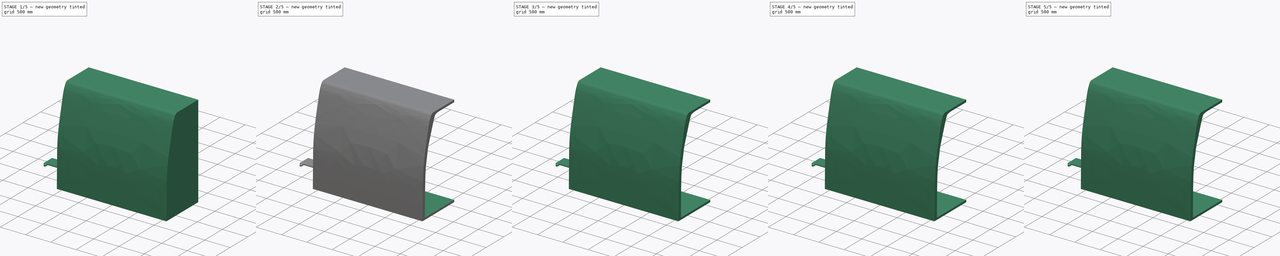
[diagram: build sequence overview — one tinted view per stage of 5, left to right]
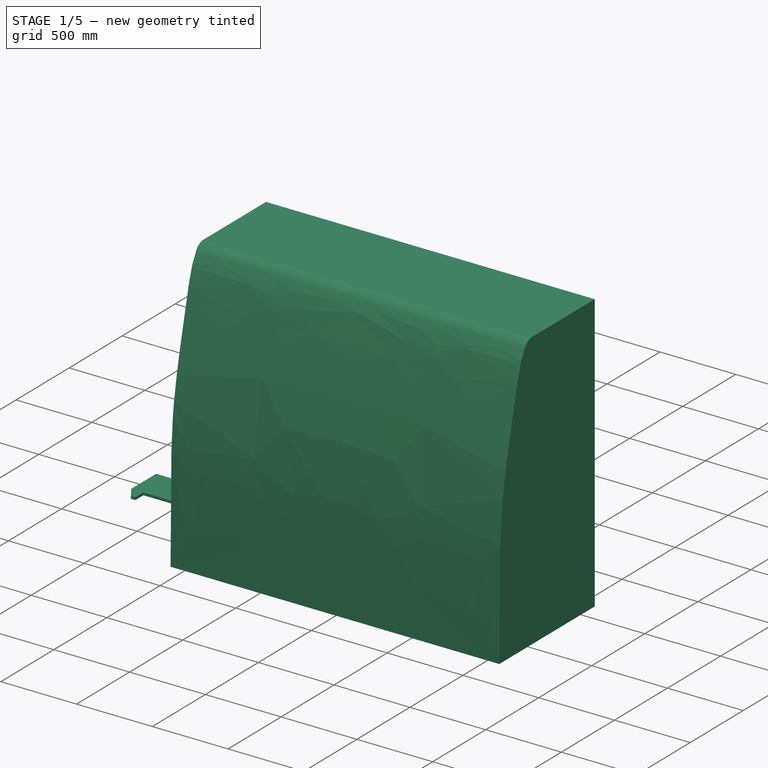
[diagram: stage 1 of 5 — iso view after this stage's code; geometry added in this stage tinted green]
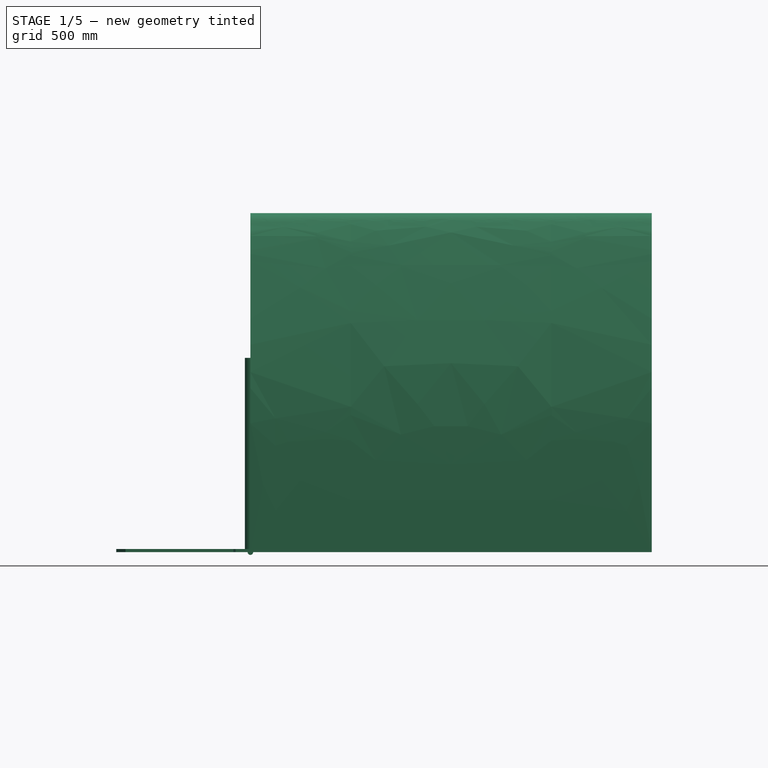
[diagram: stage 1 of 5 — front view after this stage's code; geometry added in this stage tinted green]
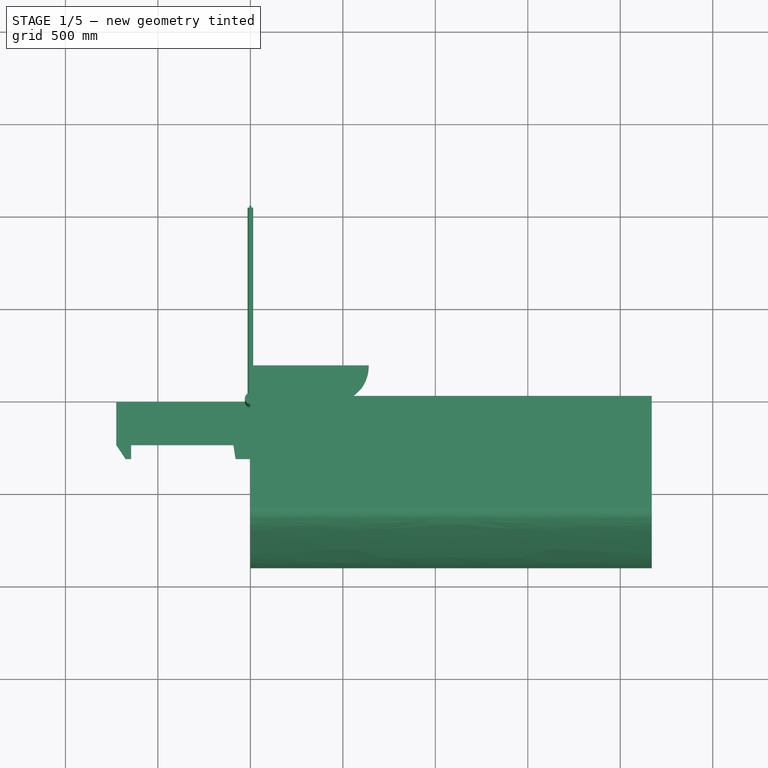
[diagram: stage 1 of 5 — top view after this stage's code; geometry added in this stage tinted green]
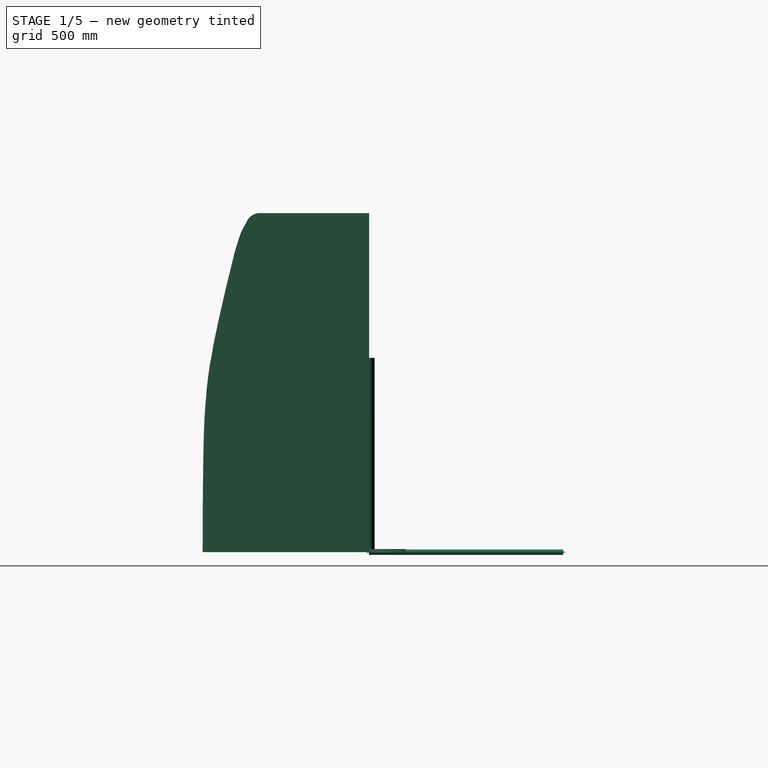
[diagram: stage 1 of 5 — right view after this stage's code; geometry added in this stage tinted green]
FCSTD DOCUMENT  (FreeCAD 0.17R13541 (Git))
Label: Design_2
License: All rights reserved
LicenseURL: http://en.wikipedia.org/wiki/All_rights_reserved
objects: Sketcher::SketchObject×51, PartDesign::Pocket×26, PartDesign::Pad×22, PartDesign::Body×14, App::Part×5, App::DocumentObjectGroup×5, PartDesign::Fillet×4, PartDesign::Revolution×3, Part::Cylinder×1
note: 172 computed .brp shape members not serialized (recipe doc carries the construction recipe); baked Part::Feature solids carry a one-line shape summary decoded from their .brp

FEATURE [PartDesign::Body] Body010  label="Caddy - Screen - Motor002"
  Group = -> [Sketch048,Pad018,MirroredSketch004,Pad019,Sketch049,Pocket031,Sketch050,Pocket032,Sketch051,Pocket033,Sketch052,Pocket034]
  Origin = -> Origin017
  Placement = pos=(0,0,3) rot=(0,0,1;0rad)
  Tip = -> Pocket034
FEATURE [App::Part] Part003  label="Volkswagen - Screen motor001"
  Group = -> [Body011,Body010]
  License = CC BY 3.0
  LicenseURL = http://creativecommons.org/licenses/by/3.0/
  Origin = -> Origin014
FEATURE [App::DocumentObjectGroup] Group002  label="Inwards"
  Group = -> [Part004,Part003]
FEATURE [Sketcher::SketchObject] Sketch053
  MapMode = 5
  Placement = pos=(0,0,0) rot=(0.57735,0.57735,0.57735;2.0944rad)
  Support = -> [YZ_Plane018]
  sketch-geometry (32):
    g0: LineSegment StartX=0 StartY=0 StartZ=0 EndX=-900 EndY=0 EndZ=0
    g1: LineSegment StartX=0 StartY=0 StartZ=0 EndX=0 EndY=1833 EndZ=0
    g2: LineSegment StartX=0 StartY=1833 StartZ=0 EndX=-600 EndY=1833 EndZ=0
    g3-g17: Circle [constr] x15 (B-spline internal-alignment scaffolding for g18; pole/knot coordinates omitted)
    g18: BSplineCurve PolesCount=15 KnotsCount=13 Degree=3 IsPeriodic=0
    g19-g31: GeomPoint [constr] x13 (B-spline internal-alignment scaffolding for g18; pole/knot coordinates omitted)
  constraints (16):
    c: Coincident(g0,g-1)
    c: Horizontal(g0)
    c: Coincident(g1,g-1)
    c: Vertical(g1)
    c: Coincident(g2,g1)
    c: Horizontal(g2)
    c: DistanceX(g2,g2) = 600
    c: Coincident(g3,g0)
    c: Radius(g3) = 50
    c: Equal(g3, g4-g17) x14
    c: Coincident(g17,g2)
    c: InternalAlignment(g3-g17 -> g18) x15
    c: InternalAlignment(g19-g31 -> g18) x13
    c: DistanceX(g0,g0) = 900
    c: DistanceY(g0,g4) = 316.99
    c: DistanceX(g4,g-1) = 899.85
FEATURE [PartDesign::Pad] Pad020
  Length = 2170
  Length2 = 100
  Placement = pos=(0,0,0) rot=(0.57735,0.57735,0.57735;2.0944rad)
  Profile = -> Sketch053
  Type = 0
FEATURE [PartDesign::Body] Body013
  Group = -> [Sketch053,Pad020,Sketch054,Pocket035]
  Origin = -> Origin019
  Tip = -> Pocket035
FEATURE [Sketcher::SketchObject] Sketch055
  MapMode = 5
  Placement = pos=(0,0,0) rot=(0.57735,0.57735,0.57735;2.0944rad)
  Support = -> [YZ_Plane020]
  sketch-geometry (27):
    g0: LineSegment StartX=0 StartY=0 StartZ=0 EndX=-230 EndY=0 EndZ=0
    g1: LineSegment StartX=-230 StartY=0 StartZ=0 EndX=-230 EndY=571.132 EndZ=0
    g2-g14: Circle [constr] x13 (B-spline internal-alignment scaffolding for g15; pole/knot coordinates omitted)
    g15: BSplineCurve PolesCount=13 KnotsCount=11 Degree=3 IsPeriodic=0
    g16-g26: GeomPoint [constr] x11 (B-spline internal-alignment scaffolding for g15; pole/knot coordinates omitted)
  constraints (19):
    c: Coincident(g0,g-1)
    c: Horizontal(g0)
    c: DistanceX(g0,g0) = 230
    c: Coincident(g1,g0)
    c: Vertical(g1)
    c: Coincident(g2,g-1)
    c: Radius(g2) = 30
    c: Equal(g2,g3)
    c: PointOnObject(g3,g-2)
    c: Equal(g2,g4)
    c: PointOnObject(g4,g-2)
    c: Equal(g2,g5)
    c: PointOnObject(g5,g-2)
    c: Equal(g2, g6-g14) x9
    c: Coincident(g14,g1)
    c: InternalAlignment(g2-g14 -> g15) x13
    c: InternalAlignment(g16-g26 -> g15) x11
    c: DistanceY(g0,g8) = 485.17
    c: DistanceX(g0,g8) = 169.17
FEATURE [PartDesign::Pad] Pad021
  Length = 1550
  Length2 = 100
  Placement = pos=(0,0,0) rot=(0.57735,0.57735,0.57735;2.0944rad)
  Profile = -> Sketch055
  Type = 0
FEATURE [Sketcher::SketchObject] Sketch056
  MapMode = 5
  Support = -> [XY_Plane020]
  sketch-geometry (31):
    g0: LineSegment StartX=0 StartY=0 StartZ=0 EndX=0 EndY=-230 EndZ=0
    g1: LineSegment StartX=0 StartY=0 StartZ=0 EndX=400 EndY=0 EndZ=0
    g2-g16: Circle [constr] x15 (B-spline internal-alignment scaffolding for g17; pole/knot coordinates omitted)
    g17: BSplineCurve PolesCount=15 KnotsCount=13 Degree=3 IsPeriodic=0
    g18-g30: GeomPoint [constr] x13 (B-spline internal-alignment scaffolding for g17; pole/knot coordinates omitted)
  constraints (14):
    c: Coincident(g0,g-1)
    c: Vertical(g0)
    c: DistanceY(g0,g0) = 230
    c: Coincident(g1,g-1)
    c: Horizontal(g1)
    c: Coincident(g2,g1)
    c: Radius(g2) = 4
    c: Equal(g2, g3-g15) x13
    c: PointOnObject(g15,g14)
    c: Equal(g2,g16)
    c: Coincident(g16,g0)
    c: InternalAlignment(g2-g16 -> g17) x15
    c: InternalAlignment(g18-g30 -> g17) x13
    c: DistanceX(g1,g1) = 400
FEATURE [PartDesign::Pocket] Pocket036
  BaseFeature = -> Pad021
  Length = 600
  Length2 = 100
  Placement = pos=(0,0,0) rot=(0.57735,0.57735,0.57735;2.0944rad)
  Profile = -> Sketch056
  Reversed = true
  Type = 0
FEATURE [PartDesign::Body] Body015  label="Car_back_sides"
  Group = -> [Sketch055,Pad021,Sketch056,Pocket036]
  Origin = -> Origin021
  Placement = pos=(570,-600,0) rot=(0,0,1;0rad)
  Tip = -> Pocket036
FEATURE [App::Part] Part005  label="car_back"
  Group = -> [Body013,Body015]
  License = CC BY 3.0
  LicenseURL = http://creativecommons.org/licenses/by/3.0/
  Origin = -> Origin018
FEATURE [Part::Cylinder] Cylinder
  Angle = 360
  AttacherType = Attacher::AttachEngine3D
  Height = 1050
  Radius = 30
FEATURE [Sketcher::SketchObject] Sketch057
  MapMode = 5
  Placement = pos=(0,0,0) rot=(0.57735,0.57735,0.57735;2.0944rad)
  Support = -> [YZ_Plane021]
  sketch-geometry (4):
    g0: LineSegment StartX=0 StartY=0 StartZ=0 EndX=0 EndY=15 EndZ=0
    g1: LineSegment StartX=0 StartY=15 StartZ=0 EndX=1050 EndY=15 EndZ=0
    g2: LineSegment StartX=1050 StartY=15 StartZ=0 EndX=1050 EndY=0 EndZ=0
    g3: LineSegment StartX=0 StartY=0 StartZ=0 EndX=1050 EndY=0 EndZ=0
  constraints (11):
    c: Coincident(g0,g-1)
    c: Vertical(g0)
    c: Coincident(g1,g0)
    c: Horizontal(g1)
    c: Coincident(g2,g1)
    c: Vertical(g2)
    c: DistanceX(g1,g1) = 1050
    c: Coincident(g3,g-1)
    c: Coincident(g3,g2)
    c: Horizontal(g3)
    c: DistanceY(g0,g0) = 15
FEATURE [PartDesign::Revolution] Revolution
  Angle = 360
  Axis = (0,1,0)
  Base = (0,0,0)
  Placement = pos=(0,0,0) rot=(0.57735,0.57735,0.57735;2.0944rad)
  Profile = -> Sketch057
  ReferenceAxis = -> Sketch057 [H_Axis]
FEATURE [Sketcher::SketchObject] Sketch058
  AttachmentOffset = pos=(1061,0,0) rot=(0,0,1;0rad)
  MapMode = 5
  Placement = pos=(1.2e-10,1061,-1.2e-10) rot=(0.57735,0.57735,0.57735;2.0944rad)
  Support = -> [YZ_Plane021]
  sketch-geometry (5):
    g0: LineSegment StartX=0 StartY=0 StartZ=0 EndX=0 EndY=2 EndZ=0
    g1: LineSegment StartX=0 StartY=0 StartZ=0 EndX=0 EndY=-2 EndZ=0
    g2: LineSegment StartX=0 StartY=-2 StartZ=0 EndX=-12 EndY=-2 EndZ=0
    g3: LineSegment StartX=0 StartY=2 StartZ=0 EndX=-12 EndY=2 EndZ=0
    g4: LineSegment StartX=-12 StartY=2 StartZ=0 EndX=-12 EndY=-2 EndZ=0
  constraints (14):
    c: Coincident(g0,g-1)
    c: PointOnObject(g0,g-2)
    c: Coincident(g1,g-1)
    c: Vertical(g1)
    c: Coincident(g2,g1)
    c: Horizontal(g2)
    c: Coincident(g3,g0)
    c: Horizontal(g3)
    c: Coincident(g4,g3)
    c: Coincident(g4,g2)
    c: Vertical(g4)
    c: DistanceX(g3,g3) = 12
    c: DistanceY(g0,g0) = 2
    c: Equal(g0,g1)
FEATURE [PartDesign::Pad] Pad022
  BaseFeature = -> Revolution
  Length = 11
  Length2 = 100
  Midplane = true
  Placement = pos=(0,0,0) rot=(0.57735,0.57735,0.57735;2.0944rad)
  Profile = -> Sketch058
  Type = 0
FEATURE [Sketcher::SketchObject] Sketch059
  MapMode = 5
  Placement = pos=(0,0,0) rot=(0.57735,0.57735,0.57735;2.0944rad)
  Support = -> [YZ_Plane021]
  sketch-geometry (4):
    g0: LineSegment StartX=0 StartY=0 StartZ=0 EndX=0 EndY=15 EndZ=0
    g1: LineSegment StartX=0 StartY=15 StartZ=0 EndX=-0.541829 EndY=15 EndZ=0
    g2: LineSegment StartX=0 StartY=0 StartZ=0 EndX=-0.541829 EndY=0 EndZ=0
    g3: LineSegment StartX=-0.541829 StartY=0 StartZ=0 EndX=-0.541829 EndY=15 EndZ=0
  constraints (12):
    c: Coincident(g0,g-1)
    c: Vertical(g0)
    c: Coincident(g1,g0)
    c: Horizontal(g1)
    c: Coincident(g2,g-1)
    c: Horizontal(g2)
    c: Coincident(g3,g2)
    c: Coincident(g3,g1)
    c: Vertical(g3)
    c: DistanceY(g3,g3) = 15
    c: Equal(g0,g3)
    c: Equal(g1,g2)
FEATURE [PartDesign::Revolution] Revolution001
  Angle = 360
  Axis = (0,1,0)
  Base = (0,0,0)
  BaseFeature = -> Pad022
  Midplane = true
  Placement = pos=(0,0,0) rot=(0.57735,0.57735,0.57735;2.0944rad)
  Profile = -> Sketch059
  ReferenceAxis = -> Sketch059 [H_Axis]
FEATURE [Sketcher::SketchObject] Sketch060
  MapMode = 5
  Placement = pos=(0,0,0) rot=(0.57735,0.57735,0.57735;2.0944rad)
  Support = -> [YZ_Plane021]
  sketch-geometry (4):
    g0: LineSegment StartX=0 StartY=0 StartZ=0 EndX=0 EndY=3 EndZ=0
    g1: LineSegment StartX=0 StartY=3 StartZ=0 EndX=-14.7 EndY=3 EndZ=0
    g2: LineSegment StartX=-14.7 StartY=3 StartZ=0 EndX=-14.7 EndY=0 EndZ=0
    g3: LineSegment StartX=-14.7 StartY=0 StartZ=0 EndX=0 EndY=0 EndZ=0
  constraints (11):
    c: Coincident(g0,g-1)
    c: Vertical(g0)
    c: Coincident(g1,g0)
    c: Horizontal(g1)
    c: Coincident(g2,g1)
    c: Vertical(g2)
    c: Coincident(g3,g2)
    c: Coincident(g3,g-1)
    c: Horizontal(g3)
    c: DistanceY(g2,g2) = 3
    c: DistanceX(g1,g1) = 14.7
FEATURE [PartDesign::Revolution] Revolution002
  Angle = 360
  Axis = (0,1,0)
  Base = (0,0,0)
  BaseFeature = -> Revolution001
  Placement = pos=(0,0,0) rot=(0.57735,0.57735,0.57735;2.0944rad)
  Profile = -> Sketch060
  ReferenceAxis = -> Sketch060 [H_Axis]
FEATURE [PartDesign::Body] Body016  label="Projector_screen"
  Group = -> [Sketch057,Revolution,Sketch058,Pad022,Sketch059,Revolution001,Sketch060,Revolution002]
  Origin = -> Origin022
  Placement = pos=(2300,-500,1700) rot=(0,0,1;0rad)
  Tip = -> Revolution002
FEATURE [App::DocumentObjectGroup] Group004  label="Bed"
FEATURE [Sketcher::SketchObject] Sketch061
  MapMode = 5
  Support = -> [XY_Plane022]
  sketch-geometry (17):
    g0: LineSegment StartX=0 StartY=0 StartZ=0 EndX=-725 EndY=0 EndZ=0
    g1: LineSegment StartX=0 StartY=0 StartZ=0 EndX=725 EndY=0 EndZ=0
    g2: LineSegment StartX=-725 StartY=0 StartZ=0 EndX=-725 EndY=-235 EndZ=0
    g3: LineSegment StartX=725 StartY=0 StartZ=0 EndX=725 EndY=-235 EndZ=0
    g4: LineSegment StartX=0 StartY=0 StartZ=0 EndX=0 EndY=-310 EndZ=0
    g5: LineSegment StartX=0 StartY=-310 StartZ=0 EndX=-80 EndY=-310 EndZ=0
    g6: LineSegment StartX=0 StartY=-310 StartZ=0 EndX=80 EndY=-310 EndZ=0
    g7: LineSegment StartX=-645 StartY=-310 StartZ=0 EndX=-675 EndY=-310 EndZ=0
    g8: LineSegment StartX=-675 StartY=-310 StartZ=0 EndX=-725 EndY=-235 EndZ=0
    g9: LineSegment StartX=-645 StartY=-310 StartZ=0 EndX=-645 EndY=-235 EndZ=0
    g10: LineSegment StartX=-645 StartY=-235 StartZ=0 EndX=-92 EndY=-235 EndZ=0
    g11: LineSegment StartX=-80 StartY=-310 StartZ=0 EndX=-92 EndY=-235 EndZ=0
    g12: LineSegment StartX=654.464 StartY=-310 StartZ=0 EndX=654.464 EndY=-235 EndZ=0
    g13: LineSegment StartX=654.464 StartY=-235 StartZ=0 EndX=92 EndY=-235 EndZ=0
    g14: LineSegment StartX=92 StartY=-235 StartZ=0 EndX=80 EndY=-310 EndZ=0
    g15: LineSegment StartX=654.464 StartY=-310 StartZ=0 EndX=684.464 EndY=-310 EndZ=0
    g16: LineSegment StartX=684.464 StartY=-310 StartZ=0 EndX=725 EndY=-235 EndZ=0
  constraints (48):
    c: Coincident(g0,g-1)
    c: PointOnObject(g0,g-1)
    c: Coincident(g1,g-1)
    c: PointOnObject(g1,g-1)
    c: Coincident(g2,g0)
    c: Vertical(g2)
    c: Coincident(g3,g1)
    c: Vertical(g3)
    c: Coincident(g4,g-1)
    c: Vertical(g4)
    c: Coincident(g5,g4)
    c: Horizontal(g5)
    c: Coincident(g6,g4)
    c: Horizontal(g6)
    c: Horizontal(g7)
    c: Coincident(g8,g7)
    c: Coincident(g8,g2)
    c: Coincident(g9,g7)
    c: Vertical(g9)
    c: DistanceY(g7,g2) = 75
    c: DistanceX(g2,g7) = 80
    c: DistanceX(g0,g-1) = 725
    c: DistanceX(g0,g1) = 1450
    c: Coincident(g10,g9)
    c: Horizontal(g10)
    c: DistanceX(g10,g4) = 92
    c: Coincident(g11,g5)
    c: Coincident(g11,g10)
    c: Vertical(g12)
    c: Coincident(g13,g12)
    c: Horizontal(g13)
    c: Coincident(g14,g13)
    c: Coincident(g14,g6)
    c: DistanceX(g4,g13) = 92
    c: DistanceX(g5,g6) = 160
    c: Equal(g12,g9)
    c: DistanceY(g9,g0) = 235
    c: DistanceY(g12,g1) = 235
    c: DistanceX(g7,g7) = 30
    c: DistanceY(g4,g-1) = 310
    c: DistanceY(g2,g0) = 235
    c: DistanceX(g5,g4) = 80
    c: Equal(g2,g3)
    c: Coincident(g15,g12)
    c: Horizontal(g15)
    c: Coincident(g16,g15)
    c: Coincident(g16,g3)
    c: Equal(g15,g7)
FEATURE [PartDesign::Pad] Pad023  label="Model_cep"
  Length = 17
  Length2 = 100
  Profile = -> Sketch061
  Type = 0
FEATURE [PartDesign::Body] Body017  label="cargo_end_plate"
  Group = -> [Sketch061,Pad023]
  Origin = -> Origin023
  Placement = pos=(0,0,237) rot=(0.57735,0.57735,0.57735;2.0944rad)
  Tip = -> Pad023
FEATURE [Sketcher::SketchObject] Sketch062
  MapMode = 5
  Support = -> [XY_Plane023]
  sketch-geometry (24):
    g0: LineSegment StartX=0 StartY=0 StartZ=0 EndX=0 EndY=197 EndZ=0
    g1: LineSegment StartX=0 StartY=197 StartZ=0 EndX=640 EndY=197 EndZ=0
    g2: LineSegment StartX=0 StartY=0 StartZ=0 EndX=485 EndY=0 EndZ=0
    g3-g13: Circle [constr] x11 (B-spline internal-alignment scaffolding for g14; pole/knot coordinates omitted)
    g14: BSplineCurve PolesCount=11 KnotsCount=9 Degree=3 IsPeriodic=0
    g15-g23: GeomPoint [constr] x9 (B-spline internal-alignment scaffolding for g14; pole/knot coordinates omitted)
  constraints (15):
    c: Coincident(g0,g-1)
    c: Vertical(g0)
    c: Coincident(g1,g0)
    c: Horizontal(g1)
    c: Coincident(g2,g-1)
    c: Horizontal(g2)
    c: DistanceY(g-1,g0) = 197
    c: DistanceX(g0,g1) = 640
    c: DistanceX(g-1,g2) = 485
    c: Coincident(g3,g2)
    c: Radius(g3) = 5
    c: Equal(g3, g4-g13) x10
    c: Coincident(g13,g1)
    c: InternalAlignment(g3-g13 -> g14) x11
    c: InternalAlignment(g15-g23 -> g14) x9
FEATURE [PartDesign::Pad] Pad024
  Length = 17
  Length2 = 100
  Profile = -> Sketch062
  Type = 0
FEATURE [PartDesign::Body] Body018  label="cargo_side_plate_left"
  Group = -> [Sketch062,Pad024]
  Origin = -> Origin024
  Placement = pos=(0,-724,0) rot=(1,0,0;1.5708rad)
  Tip = -> Pad024
FEATURE [Sketcher::SketchObject] Sketch063
  MapMode = 5
  Support = -> [XY_Plane024]
  sketch-geometry (24):
    g0: LineSegment StartX=0 StartY=0 StartZ=0 EndX=0 EndY=197 EndZ=0
    g1: LineSegment StartX=0 StartY=197 StartZ=0 EndX=640 EndY=197 EndZ=0
    g2: LineSegment StartX=0 StartY=0 StartZ=0 EndX=485 EndY=0 EndZ=0
    g3-g13: Circle [constr] x11 (B-spline internal-alignment scaffolding for g14; pole/knot coordinates omitted)
    g14: BSplineCurve PolesCount=11 KnotsCount=9 Degree=3 IsPeriodic=0
    g15-g23: GeomPoint [constr] x9 (B-spline internal-alignment scaffolding for g14; pole/knot coordinates omitted)
  constraints (15):
    c: Coincident(g0,g-1)
    c: Vertical(g0)
    c: Coincident(g1,g0)
    c: Horizontal(g1)
    c: Coincident(g2,g-1)
    c: Horizontal(g2)
    c: DistanceY(g-1,g0) = 197
    c: DistanceX(g0,g1) = 640
    c: DistanceX(g-1,g2) = 485
    c: Coincident(g3,g2)
    c: Radius(g3) = 5
    c: Equal(g3, g4-g13) x10
    c: Coincident(g13,g1)
    c: InternalAlignment(g3-g13 -> g14) x11
    c: InternalAlignment(g15-g23 -> g14) x9
FEATURE [PartDesign::Pad] Pad025
  Length = 17
  Length2 = 100
  Profile = -> Sketch063
  Type = 0
FEATURE [PartDesign::Body] Body019  label="cargo_side_plate_right"
  Group = -> [Sketch063,Pad025]
  Origin = -> Origin025
  Placement = pos=(0,742,0) rot=(1,0,0;1.5708rad)
  Tip = -> Pad025
FEATURE [App::DocumentObjectGroup] Group003  label="Frame"
  Group = -> [Part005,Body016,Body017,Body018,Body019]
FEATURE [App::DocumentObjectGroup] Group  label="Volkswagen Caddy"
  Group = -> [Group001,Group002,Group003,Group004]
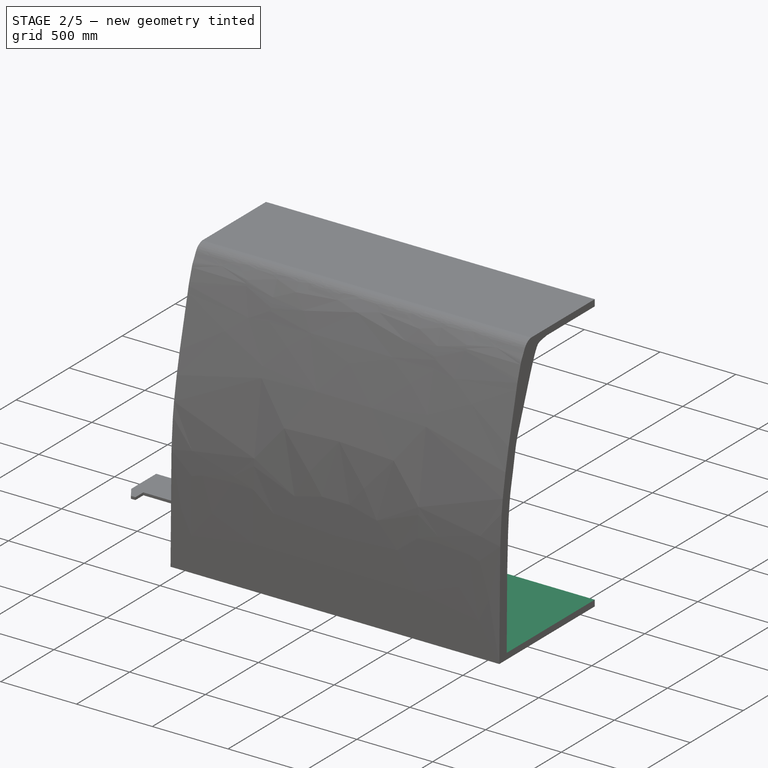
[diagram: stage 2 of 5 — iso view after this stage's code; geometry added in this stage tinted green]
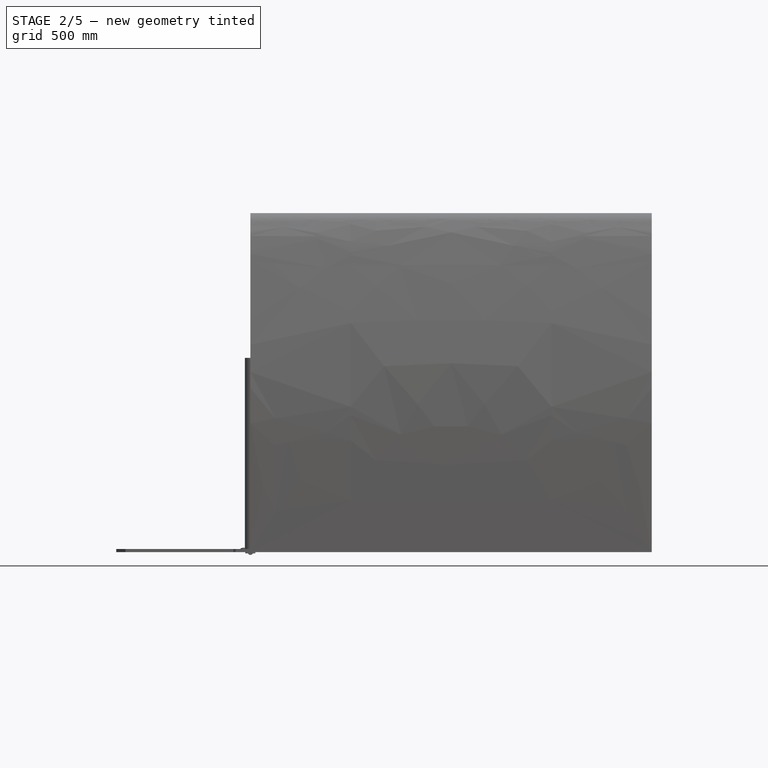
[diagram: stage 2 of 5 — front view after this stage's code; geometry added in this stage tinted green]
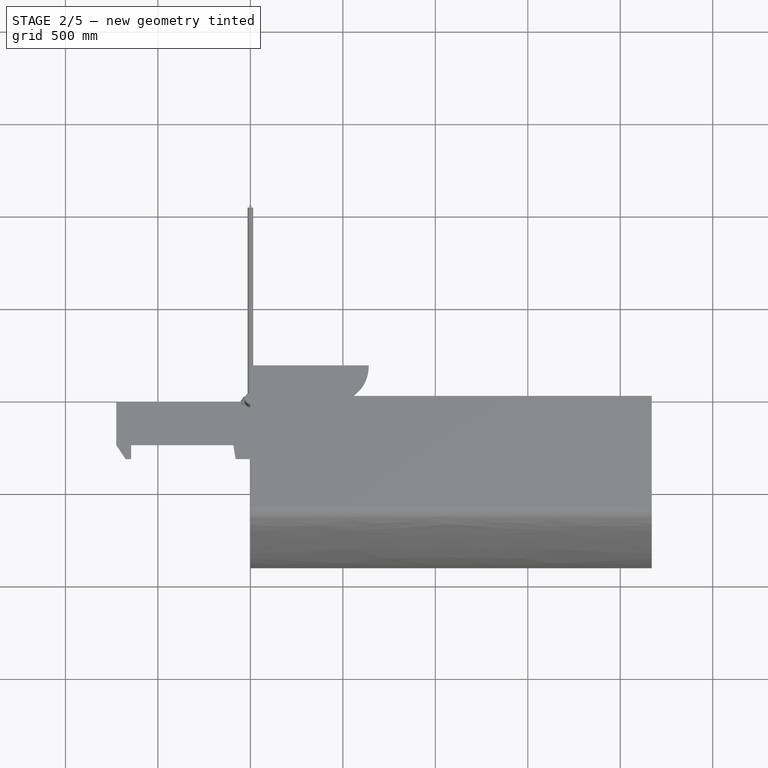
[diagram: stage 2 of 5 — top view after this stage's code; geometry added in this stage tinted green]
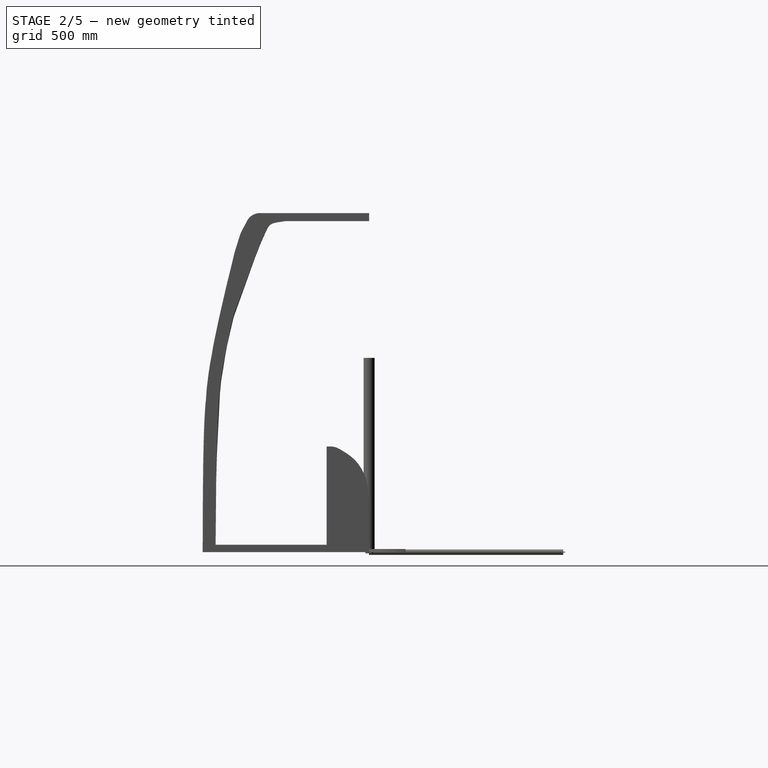
[diagram: stage 2 of 5 — right view after this stage's code; geometry added in this stage tinted green]
FEATURE [PartDesign::Body] Body012  label="Caddy - Screen - Motor003"
  Group = -> [Sketch039,Pad014,MirroredSketch003,Pad015,Sketch040,Pocket025,Sketch041,Pocket026,Sketch042,Pocket027,Sketch043,Pocket028]
  Origin = -> Origin015
  Placement = pos=(0,0,3) rot=(-1,0,0;0rad)
  Tip = -> Pocket028
FEATURE [Sketcher::SketchObject] Sketch044  label="Outter_region004"
  MapMode = 5
  Support = -> [XY_Plane015]
  sketch-geometry (10):
    g0: GeomPoint X=0 Y=28 Z=0
    g1: GeomPoint X=0 Y=-28.07 Z=0
    g2: ArcOfCircle CenterX=-29 CenterY=-15.2502 CenterZ=0 NormalX=0 NormalY=0 NormalZ=1 AngleXU=0 Radius=12.7856 StartAngle=3.22125 EndAngle=4.63751
    g3: ArcOfCircle CenterX=-29 CenterY=15.2527 CenterZ=0 NormalX=0 NormalY=0 NormalZ=1 AngleXU=0 Radius=12.7856 StartAngle=1.64822 EndAngle=3.22125
    g4: LineSegment StartX=-41.7451 StartY=14.2352 StartZ=0 EndX=-41.7451 EndY=-16.2676 EndZ=0
    g5: ArcOfCircle CenterX=29 CenterY=15.2555 CenterZ=0 NormalX=0 NormalY=0 NormalZ=1 AngleXU=0 Radius=12.7856 StartAngle=0.0208341 EndAngle=1.49051
    g6: ArcOfCircle CenterX=29 CenterY=-15.2544 CenterZ=0 NormalX=0 NormalY=0 NormalZ=1 AngleXU=0 Radius=12.7856 StartAngle=4.79159 EndAngle=6.26235
    g7: LineSegment StartX=41.7829 StartY=-15.5208 StartZ=0 EndX=41.7829 EndY=15.5219 EndZ=0
    g8: LineSegment StartX=-29.9889 StartY=28 StartZ=0 EndX=30.0254 EndY=28 EndZ=0
    g9: LineSegment StartX=30.0115 StartY=-28 StartZ=0 EndX=-29.9565 EndY=-28 EndZ=0
  constraints (27):
    c: PointOnObject(g0,g-2)
    c: PointOnObject(g1,g-2)
    c: Coincident(g4,g3)
    c: Coincident(g4,g2)
    c: Vertical(g4)
    c: Coincident(g7,g6)
    c: Coincident(g7,g5)
    c: Vertical(g7)
    c: Coincident(g8,g3)
    c: Coincident(g8,g5)
    c: Horizontal(g8)
    c: Coincident(g9,g6)
    c: Coincident(g9,g2)
    c: Horizontal(g9)
    c: DistanceX(g2,g-1) = 29
    c: DistanceX(g3,g-1) = 29
    c: DistanceX(g-1,g5) = 29
    c: DistanceX(g-1,g6) = 29
    c: Equal(g5,g3)
    c: Equal(g3,g2)
    c: Equal(g2,g6)
    c: DistanceY(g-1,g3) = 28
    c: DistanceX(g3,g-1) = 41.7451
    c: DistanceX(g-1,g5) = 41.7829
    c: DistanceY(g6,g5) = 56
    c: DistanceY(g2,g-1) = 28
    c: DistanceX(g2,g6) = 83.5279
FEATURE [Sketcher::SketchObject] Sketch045  label="Car_socket004"
  AttachmentOffset = pos=(0,0,-7) rot=(0,0,1;0rad)
  MapMode = 5
  Placement = pos=(0,0,-7) rot=(0,0,1;0rad)
  Support = -> [XY_Plane015]
  sketch-geometry (16):
    g0: GeomPoint X=-27 Y=0 Z=0
    g1: GeomPoint X=27 Y=0 Z=0
    g2: GeomPoint X=0 Y=21 Z=0
    g3: GeomPoint X=0 Y=-21 Z=0
    g4: LineSegment StartX=0 StartY=-21 StartZ=0 EndX=-20.1229 EndY=-21 EndZ=0
    g5: LineSegment StartX=0 StartY=-21 StartZ=0 EndX=20.1229 EndY=-21 EndZ=0
    g6: LineSegment StartX=0 StartY=21 StartZ=0 EndX=-20.1229 EndY=21 EndZ=0
    g7: LineSegment StartX=0 StartY=21 StartZ=0 EndX=20.1229 EndY=21 EndZ=0
    g8: LineSegment StartX=-27 StartY=0 StartZ=0 EndX=-27 EndY=14.1229 EndZ=0
    g9: LineSegment StartX=-27 StartY=0 StartZ=0 EndX=-27 EndY=-14.1229 EndZ=0
    g10: LineSegment StartX=27 StartY=0 StartZ=0 EndX=27 EndY=-14.1229 EndZ=0
    g11: LineSegment StartX=27 StartY=0 StartZ=0 EndX=27 EndY=14.1229 EndZ=0
    g12: ArcOfCircle CenterX=20.1229 CenterY=14.1229 CenterZ=0 NormalX=0 NormalY=0 NormalZ=1 AngleXU=0 Radius=6.87711 StartAngle=0 EndAngle=1.5708
    g13: ArcOfCircle CenterX=-20.1229 CenterY=14.1229 CenterZ=0 NormalX=0 NormalY=0 NormalZ=1 AngleXU=0 Radius=6.87711 StartAngle=1.5708 EndAngle=3.14159
    g14: ArcOfCircle CenterX=-20.1229 CenterY=-14.1229 CenterZ=0 NormalX=0 NormalY=0 NormalZ=1 AngleXU=0 Radius=6.87711 StartAngle=3.14159 EndAngle=4.71239
    g15: ArcOfCircle CenterX=20.1229 CenterY=-14.1229 CenterZ=0 NormalX=0 NormalY=0 NormalZ=1 AngleXU=0 Radius=6.87711 StartAngle=4.71239 EndAngle=6.28319
  constraints (36):
    c: PointOnObject(g0,g-1)
    c: PointOnObject(g1,g-1)
    c: PointOnObject(g2,g-2)
    c: PointOnObject(g3,g-2)
    c: DistanceX(g0,g-1) = 27
    c: DistanceY(g-1,g2) = 21
    c: Coincident(g4,g3)
    c: Horizontal(g4)
    c: Coincident(g5,g3)
    c: Horizontal(g5)
    c: Coincident(g6,g2)
    c: Horizontal(g6)
    c: Coincident(g7,g2)
    c: Horizontal(g7)
    c: Coincident(g8,g0)
    c: Vertical(g8)
    c: Coincident(g9,g0)
    c: Vertical(g9)
    c: Coincident(g10,g1)
    c: Vertical(g10)
    c: Coincident(g11,g1)
    c: Vertical(g11)
    c: Tangent(g7,g12) = 1.5708
    c: Tangent(g11,g12) = -1.5708
    c: Tangent(g8,g13) = 1.5708
    c: Tangent(g6,g13) = -1.5708
    c: Tangent(g9,g14) = -1.5708
    c: Tangent(g4,g14) = 1.5708
    c: Tangent(g5,g15) = -1.5708
    c: Tangent(g10,g15) = 1.5708
    c: Equal(g9,g10)
    c: Equal(g10,g11)
    c: Equal(g11,g8)
    c: Equal(g6,g7)
    c: Equal(g7,g5)
    c: Equal(g5,g4)
FEATURE [PartDesign::Pad] Pad016  label="Solid_outter_part004"
  Length = 6
  Length2 = 100
  Profile = -> Sketch044
  Type = 0
FEATURE [PartDesign::Pad] Pad017  label="Solid_socket004"
  BaseFeature = -> Pad016
  Length = 8
  Length2 = 100
  Profile = -> Sketch045
  Type = 0
FEATURE [PartDesign::Fillet] Fillet004
  Base = -> Pad017 [Edge29,Edge28,Edge4,Edge10,Edge7,Edge32,Edge31,Edge30]
  BaseFeature = -> Pad017
  Radius = 4
FEATURE [Sketcher::SketchObject] Sketch046  label="screw_trough_hole004"
  AttachmentOffset = pos=(-6,3,12) rot=(1,0,0;-0.261799rad)
  MapMode = 5
  Placement = pos=(-6,3,12) rot=(1,0,0;6.02139rad)
  Support = -> [XY_Plane015]
  sketch-geometry (1):
    g0: Circle CenterX=0 CenterY=0 CenterZ=0 NormalX=0 NormalY=0 NormalZ=1 AngleXU=0 Radius=5
  constraints (2):
    c: Coincident(g0,g-1)
    c: Radius(g0) = 5
FEATURE [Sketcher::SketchObject] Sketch047  label="screw_head_socket004"
  AttachmentOffset = pos=(-6,3,12) rot=(1,0,0;-0.261799rad)
  MapMode = 5
  Placement = pos=(-6,3,12) rot=(1,0,0;6.02139rad)
  Support = -> [XY_Plane015]
  sketch-geometry (1):
    g0: Circle CenterX=0 CenterY=0 CenterZ=0 NormalX=0 NormalY=0 NormalZ=1 AngleXU=0 Radius=10
  constraints (2):
    c: Coincident(g0,g-1)
    c: Radius(g0) = 10
FEATURE [PartDesign::Pocket] Pocket029
  BaseFeature = -> Fillet004
  Length = 13
  Length2 = 100
  Profile = -> Sketch047
  Type = 0
FEATURE [PartDesign::Body] Body009  label="Body - Left002"
  Group = -> [Sketch044,Sketch045,Pad016,Pad017,Fillet004,Sketch047,Sketch046,Pocket029,Pocket030]
  Origin = -> Origin016
  Tip = -> Pocket030
FEATURE [App::Part] Part004  label="Volkswagen - Screen support001"
  Group = -> [Body009,Body012]
  License = CC BY 3.0
  LicenseURL = http://creativecommons.org/licenses/by/3.0/
  Origin = -> Origin013
  Placement = pos=(0,69,0) rot=(0,0,1;0rad)
FEATURE [Sketcher::SketchObject] Sketch048
  MapMode = 5
  Support = -> [XY_Plane016]
  sketch-geometry (29):
    g0: LineSegment StartX=-9.58395 StartY=13.5 StartZ=0 EndX=16.3102 EndY=13.5 EndZ=0
    g1-g5: Circle [constr] x5 (B-spline internal-alignment scaffolding for g6; pole/knot coordinates omitted)
    g6: BSplineCurve PolesCount=5 KnotsCount=3 Degree=3 IsPeriodic=0
    g7: GeomPoint [constr] X=16.3102 Y=13.5 Z=0
    g8: GeomPoint [constr] X=27.9033 Y=10.9728 Z=0
    g9: GeomPoint [constr] X=36.883 Y=3.99632 Z=0
    g10: LineSegment StartX=-9.47542 StartY=18.5 StartZ=0 EndX=16.4188 EndY=18.5 EndZ=0
    g11-g14: Circle [constr] x4 (B-spline internal-alignment scaffolding for g15; pole/knot coordinates omitted)
    g15: BSplineCurve PolesCount=4 KnotsCount=2 Degree=3 IsPeriodic=0
    g16: GeomPoint [constr] X=16.4188 Y=18.5 Z=0
    g17: GeomPoint [constr] X=36.883 Y=3.99632 Z=0
    g18: Circle [constr] CenterX=-9.47542 CenterY=18.5 CenterZ=0 NormalX=0 NormalY=0 NormalZ=1 AngleXU=0 Radius=5
    g19: Circle [constr] CenterX=-37.3482 CenterY=18.4799 CenterZ=0 NormalX=0 NormalY=0 NormalZ=1 AngleXU=0 Radius=5
    g20: Circle [constr] CenterX=-45.9357 CenterY=14.9697 CenterZ=0 NormalX=0 NormalY=0 NormalZ=1 AngleXU=0 Radius=5
    g21: Circle [constr] CenterX=-52.392 CenterY=5.81805 CenterZ=0 NormalX=0 NormalY=0 NormalZ=1 AngleXU=0 Radius=5
    g22: Circle [constr] CenterX=-53.9591 CenterY=0 CenterZ=0 NormalX=0 NormalY=0 NormalZ=1 AngleXU=0 Radius=5
    g23: BSplineCurve PolesCount=5 KnotsCount=3 Degree=3 IsPeriodic=0
    g24: GeomPoint [constr] X=-9.47542 Y=18.5 Z=0
    g25: GeomPoint [constr] X=-45.4029 Y=13.5593 Z=0
    g26: GeomPoint [constr] X=-53.9591 Y=0 Z=0
    g27: ArcOfCircle CenterX=-9.0071 CenterY=2.43946e-05 CenterZ=0 NormalX=0 NormalY=0 NormalZ=1 AngleXU=0 Radius=13.5123 StartAngle=1.6135 EndAngle=3.14159
    g28: LineSegment StartX=-22.5194 StartY=0 StartZ=0 EndX=-53.9591 EndY=0 EndZ=0
  constraints (33):
    c: Horizontal(g0)
    c: DistanceY(g-1,g0) = 13.5
    c: Coincident(g1,g0)
    c: Radius(g1) = 2
    c: Equal(g1,g2)
    c: PointOnObject(g2,g1)
    c: Equal(g1,g3)
    c: Equal(g1,g4)
    c: Equal(g1,g5)
    c: InternalAlignment(g1-g5 -> g6) x5
    c: InternalAlignment(g7,g6)
    c: InternalAlignment(g8,g6)
    c: InternalAlignment(g9,g6)
    c: Horizontal(g10)
    c: DistanceY(g0,g10) = 5
    c: Equal(g10,g0)
    c: Coincident(g11,g10)
    c: Radius(g11) = 2
    c: Equal(g11,g12)
    c: Equal(g11,g13)
    c: Equal(g11,g14)
    c: Coincident(g14,g5)
    c: InternalAlignment(g11-g14 -> g15) x4
    c: InternalAlignment(g16,g15)
    c: InternalAlignment(g17,g15)
    c: Coincident(g18,g10)
    c: Radius(g18) = 5
    c: Equal(g18, g19-g22) x4
    c: Coincident(g27,g0)
    c: PointOnObject(g27,g-1)
    c: Coincident(g28,g27)
    c: Coincident(g28,g22)
    c: Horizontal(g28)
FEATURE [Sketcher::SketchObject] MirroredSketch004
  sketch-geometry (29):
    g0: LineSegment StartX=-9.27509 StartY=-13.5 StartZ=0 EndX=16.7793 EndY=-13.5 EndZ=0
    g1: Circle [constr] CenterX=16.7793 CenterY=-13.5 CenterZ=0 NormalX=0 NormalY=0 NormalZ=1 AngleXU=0 Radius=2
    g2: Circle [constr] CenterX=18.7793 CenterY=-13.5016 CenterZ=0 NormalX=0 NormalY=0 NormalZ=1 AngleXU=0 Radius=2
    g3: Circle [constr] CenterX=30.2613 CenterY=-12.3004 CenterZ=0 NormalX=0 NormalY=0 NormalZ=1 AngleXU=0 Radius=2
    g4: Circle [constr] CenterX=32.7805 CenterY=-5.78943 CenterZ=0 NormalX=0 NormalY=0 NormalZ=1 AngleXU=0 Radius=2
    g5: Circle [constr] CenterX=36.883 CenterY=-3.99632 CenterZ=0 NormalX=0 NormalY=0 NormalZ=1 AngleXU=0 Radius=2
    g6: BSplineCurve PolesCount=5 KnotsCount=3 Degree=3 IsPeriodic=0
    g7: GeomPoint [constr] X=16.7793 Y=-13.5 Z=0
    g8: GeomPoint [constr] X=28.0206 Y=-10.973 Z=0
    g9: GeomPoint [constr] X=36.883 Y=-3.99632 Z=0
    g10: LineSegment StartX=-9.47542 StartY=-18.5 StartZ=0 EndX=16.579 EndY=-18.5 EndZ=0
    g11: Circle [constr] CenterX=16.579 CenterY=-18.5 CenterZ=0 NormalX=0 NormalY=0 NormalZ=1 AngleXU=0 Radius=2
    g12: Circle [constr] CenterX=30.0728 CenterY=-14.9629 CenterZ=0 NormalX=0 NormalY=0 NormalZ=1 AngleXU=0 Radius=2
    g13: Circle [constr] CenterX=31.6104 CenterY=-10.0592 CenterZ=0 NormalX=0 NormalY=0 NormalZ=1 AngleXU=0 Radius=2
    g14: Circle [constr] CenterX=36.883 CenterY=-3.99632 CenterZ=0 NormalX=0 NormalY=0 NormalZ=1 AngleXU=0 Radius=2
    g15: BSplineCurve PolesCount=4 KnotsCount=2 Degree=3 IsPeriodic=0
    g16: GeomPoint [constr] X=16.579 Y=-18.5 Z=0
    g17: GeomPoint [constr] X=36.883 Y=-3.99632 Z=0
    g18: Circle [constr] CenterX=-9.47542 CenterY=-18.5 CenterZ=0 NormalX=0 NormalY=0 NormalZ=1 AngleXU=0 Radius=5
    g19: Circle [constr] CenterX=-37.3482 CenterY=-18.4799 CenterZ=0 NormalX=0 NormalY=0 NormalZ=1 AngleXU=0 Radius=5
    g20: Circle [constr] CenterX=-45.9357 CenterY=-14.9697 CenterZ=0 NormalX=0 NormalY=0 NormalZ=1 AngleXU=0 Radius=5
    g21: Circle [constr] CenterX=-52.392 CenterY=-5.81805 CenterZ=0 NormalX=0 NormalY=0 NormalZ=1 AngleXU=0 Radius=5
    g22: Circle [constr] CenterX=-53.9591 CenterY=5e-12 CenterZ=0 NormalX=0 NormalY=0 NormalZ=1 AngleXU=0 Radius=5
    g23: BSplineCurve PolesCount=5 KnotsCount=3 Degree=3 IsPeriodic=0
    g24: GeomPoint [constr] X=-9.47542 Y=-18.5 Z=0
    g25: GeomPoint [constr] X=-45.4029 Y=-13.5593 Z=0
    g26: GeomPoint [constr] X=-53.9591 Y=0 Z=0
    g27: ArcOfCircle CenterX=-9.0071 CenterY=-4.95926e-06 CenterZ=0 NormalX=0 NormalY=0 NormalZ=1 AngleXU=0 Radius=13.5027 StartAngle=3.14159 EndAngle=4.69254
    g28: LineSegment StartX=-22.5098 StartY=5e-12 StartZ=0 EndX=-53.9591 EndY=5e-12 EndZ=0
  constraints (23):
    c: Horizontal(g0)
    c: Coincident(g1,g0)
    c: Radius(g1) = 2
    c: Equal(g1,g2)
    c: PointOnObject(g2,g1)
    c: Equal(g1,g3)
    c: Equal(g1,g4)
    c: Equal(g1,g5)
    c: Horizontal(g10)
    c: Equal(g10,g0)
    c: Coincident(g11,g10)
    c: Radius(g11) = 2
    c: Equal(g11,g12)
    c: Equal(g11,g13)
    c: Equal(g11,g14)
    c: Coincident(g14,g5)
    c: Coincident(g18,g10)
    c: Radius(g18) = 5
    c: Equal(g18, g19-g22) x4
    c: Coincident(g27,g0)
    c: Coincident(g28,g27)
    c: Coincident(g28,g22)
    c: Horizontal(g28)
FEATURE [PartDesign::Pad] Pad018
  Length = 30
  Length2 = 100
  Profile = -> Sketch048
  Type = 0
FEATURE [PartDesign::Pad] Pad019
  BaseFeature = -> Pad018
  Length = 30
  Length2 = 100
  Profile = -> MirroredSketch004
  Type = 0
FEATURE [Sketcher::SketchObject] Sketch049
  MapMode = 5
  Placement = pos=(0,0,0) rot=(1,0,0;1.5708rad)
  Support = -> [XZ_Plane016]
  sketch-geometry (31):
    g0-g13: Circle [constr] x14 (B-spline internal-alignment scaffolding for g14; pole/knot coordinates omitted)
    g14: BSplineCurve PolesCount=14 KnotsCount=12 Degree=3 IsPeriodic=0
    g15-g26: GeomPoint [constr] x12 (B-spline internal-alignment scaffolding for g14; pole/knot coordinates omitted)
    g27: LineSegment StartX=-54.0267 StartY=16.4728 StartZ=0 EndX=-67.1158 EndY=16.5807 EndZ=0
    g28: LineSegment StartX=-67.1158 StartY=16.5807 StartZ=0 EndX=-67.1158 EndY=-12.0404 EndZ=0
    g29: LineSegment StartX=-67.1158 StartY=-12.0404 StartZ=0 EndX=-30.5191 EndY=-12.0404 EndZ=0
    g30: LineSegment StartX=-30.5191 StartY=-12.0404 StartZ=0 EndX=-24.537 EndY=-5.96273 EndZ=0
  constraints (10):
    c: Equal(g0, g1-g13) x13
    c: InternalAlignment(g0-g13 -> g14) x14
    c: InternalAlignment(g15-g26 -> g14) x12
    c: Coincident(g27,g13)
    c: Coincident(g28,g27)
    c: Vertical(g28)
    c: Coincident(g29,g28)
    c: Horizontal(g29)
    c: Coincident(g30,g29)
    c: Coincident(g30,g0)
FEATURE [PartDesign::Pocket] Pocket031
  BaseFeature = -> Pad019
  Length = 40
  Length2 = 100
  Midplane = true
  Profile = -> Sketch049
  Type = 0
FEATURE [Sketcher::SketchObject] Sketch050
  MapMode = 5
  Placement = pos=(0,0,0) rot=(1,0,0;1.5708rad)
  Support = -> [XZ_Plane016]
  sketch-geometry (34):
    g0-g14: Circle [constr] x15 (B-spline internal-alignment scaffolding for g15; pole/knot coordinates omitted)
    g15: BSplineCurve PolesCount=15 KnotsCount=13 Degree=3 IsPeriodic=0
    g16: GeomPoint [constr] X=37.0012 Y=0 Z=0
    g17: GeomPoint [constr] X=34.2626 Y=1.51967 Z=0
    g18: GeomPoint [constr] X=31.196 Y=2.3893 Z=0
    g19: GeomPoint [constr] X=27.6107 Y=3.2818 Z=0
    g20: GeomPoint [constr] X=22.1336 Y=4.44893 Z=0
    g21: GeomPoint [constr] X=12.7546 Y=6.13478 Z=0
    g22: GeomPoint [constr] X=-1.22035 Y=8.3012 Z=0
    g23: GeomPoint [constr] X=-17.4348 Y=11.6069 Z=0
    g24: GeomPoint [constr] X=-24.3733 Y=16.7582 Z=0
    g25: GeomPoint [constr] X=-26.6354 Y=22.1109 Z=0
    g26: GeomPoint [constr] X=-27.9265 Y=27.1917 Z=0
    g27: GeomPoint [constr] X=-29.3353 Y=29.3697 Z=0
    g28: GeomPoint [constr] X=-30.6853 Y=30.3483 Z=0
    g29: LineSegment StartX=49.5259 StartY=7.28546 StartZ=0 EndX=37.4444 EndY=0 EndZ=0
    g30: LineSegment StartX=49.5259 StartY=7.28546 StartZ=0 EndX=49.5259 EndY=21.3368 EndZ=0
    g31: LineSegment StartX=-30.572 StartY=21.2812 StartZ=0 EndX=-30.572 EndY=45.33 EndZ=0
    g32: LineSegment StartX=-30.572 StartY=45.33 StartZ=0 EndX=49.5259 EndY=45.33 EndZ=0
    g33: LineSegment StartX=49.5259 StartY=21.3368 StartZ=0 EndX=49.5259 EndY=45.33 EndZ=0
  constraints (14):
    c: PointOnObject(g0,g-1)
    c: Radius(g0) = 0.2
    c: Equal(g0, g1-g14) x14
    c: InternalAlignment(g0-g14 -> g15) x15
    c: Coincident(g29,g0)
    c: Coincident(g30,g29)
    c: Vertical(g30)
    c: Coincident(g31,g14)
    c: Vertical(g31)
    c: Coincident(g32,g31)
    c: Horizontal(g32)
    c: Coincident(g33,g30)
    c: Coincident(g33,g32)
    c: Vertical(g33)
FEATURE [PartDesign::Pocket] Pocket032
  BaseFeature = -> Pocket031
  Length = 43
  Length2 = 100
  Midplane = true
  Profile = -> Sketch050
  Type = 0
FEATURE [Sketcher::SketchObject] Sketch051
  AttachmentOffset = pos=(-41,0,26) rot=(1,0,0;-0.349066rad)
  MapMode = 5
  Placement = pos=(-41,0,26) rot=(1,0,0;5.93412rad)
  Support = -> [XY_Plane016]
  sketch-geometry (77):
    g0: ArcOfCircle CenterX=0 CenterY=0 CenterZ=0 NormalX=0 NormalY=0 NormalZ=1 AngleXU=0 Radius=3.2 StartAngle=3.23485 EndAngle=6.28319
    g1: LineSegment StartX=-3.1861 StartY=-0.29798 StartZ=0 EndX=-3.1861 EndY=1.22254 EndZ=0
    g2: LineSegment StartX=3.2 StartY=-2e-12 StartZ=0 EndX=3.2 EndY=1.52052 EndZ=0
    g3: LineSegment StartX=-3.3 StartY=23.4239 StartZ=0 EndX=3.2 EndY=23.4217 EndZ=0
    g4: LineSegment StartX=3.2 StartY=1.52052 StartZ=0 EndX=3.2 EndY=23.4217 EndZ=0
    g5: LineSegment StartX=-3.3 StartY=5.85639 StartZ=0 EndX=-3.3 EndY=23.4239 EndZ=0
    g6-g15: Circle [constr] x10 (B-spline internal-alignment scaffolding for g16; pole/knot coordinates omitted)
    g16: BSplineCurve PolesCount=10 KnotsCount=8 Degree=3 IsPeriodic=0
    g17-g24: GeomPoint [constr] x8 (B-spline internal-alignment scaffolding for g16; pole/knot coordinates omitted)
    g25-g50: Circle [constr] x26 (B-spline internal-alignment scaffolding for g51; pole/knot coordinates omitted)
    g51: BSplineCurve PolesCount=26 KnotsCount=24 Degree=3 IsPeriodic=0
    g52-g75: GeomPoint [constr] x24 (B-spline internal-alignment scaffolding for g51; pole/knot coordinates omitted)
    g76: LineSegment StartX=-4.78403 StartY=3.06103 StartZ=0 EndX=-4.77593 EndY=3.08717 EndZ=0
  constraints (25):
    c: Coincident(g0,g-1)
    c: Radius(g0) = 3.2
    c: Coincident(g1,g0)
    c: Vertical(g1)
    c: Coincident(g2,g0)
    c: Vertical(g2)
    c: Equal(g1,g2)
    c: Coincident(g4,g2)
    c: Coincident(g4,g3)
    c: Vertical(g4)
    c: Coincident(g5,g3)
    c: Vertical(g5)
    c: DistanceX(g3,g3) = 6.5
    c: Coincident(g6,g1)
    c: Radius(g6) = 0.02
    c: Equal(g6, g7-g15) x9
    c: InternalAlignment(g6-g15 -> g16) x10
    c: InternalAlignment(g17-g24 -> g16) x8
    c: Radius(g25) = 0.02
    c: Equal(g25, g26-g50) x25
    c: Coincident(g50,g5)
    c: InternalAlignment(g25-g50 -> g51) x26
    c: InternalAlignment(g52-g75 -> g51) x24
    c: Coincident(g76,g15)
    c: Coincident(g76,g25)
FEATURE [PartDesign::Pocket] Pocket033
  BaseFeature = -> Pocket032
  Length = 16
  Length2 = 100
  Profile = -> Sketch051
  Type = 0
FEATURE [Sketcher::SketchObject] Sketch052
  AttachmentOffset = pos=(0,-10,-55) rot=(0,1,0;3.14159rad)
  MapMode = 5
  Placement = pos=(-55,5e-12,-10) rot=(-0.57735,0.57735,0.57735;4.18879rad)
  Support = -> [YZ_Plane016]
  sketch-geometry (4):
    g0: LineSegment StartX=18.0686 StartY=43.2445 StartZ=0 EndX=-18.6371 EndY=43.2445 EndZ=0
    g1: LineSegment StartX=18.0686 StartY=34.2496 StartZ=0 EndX=18.0686 EndY=43.2445 EndZ=0
    g2: LineSegment StartX=-18.6371 StartY=20.955 StartZ=0 EndX=-18.6371 EndY=43.2445 EndZ=0
    g3: LineSegment StartX=-18.6371 StartY=20.955 StartZ=0 EndX=18.0686 EndY=34.2496 EndZ=0
  constraints (8):
    c: Horizontal(g0)
    c: Coincident(g1,g0)
    c: Vertical(g1)
    c: Coincident(g2,g0)
    c: Vertical(g2)
    c: Coincident(g3,g2)
    c: Coincident(g3,g1)
    c: Angle(g3,g2) = 1.2233
FEATURE [PartDesign::Pocket] Pocket034
  BaseFeature = -> Pocket033
  Length = 56
  Length2 = 100
  Profile = -> Sketch052
  Type = 0
FEATURE [Sketcher::SketchObject] Sketch054
  AttachmentOffset = pos=(0,40,1100) rot=(0,0,1;0rad)
  MapMode = 5
  Placement = pos=(1100,-1.2e-10,40) rot=(0.57735,0.57735,0.57735;2.0944rad)
  Support = -> [YZ_Plane018]
  sketch-geometry (25):
    g0: LineSegment StartX=0 StartY=0 StartZ=0 EndX=0 EndY=1750 EndZ=0
    g1: LineSegment StartX=0 StartY=0 StartZ=0 EndX=-830 EndY=0 EndZ=0
    g2-g12: Circle [constr] x11 (B-spline internal-alignment scaffolding for g13; pole/knot coordinates omitted)
    g13: BSplineCurve PolesCount=11 KnotsCount=9 Degree=3 IsPeriodic=0
    g14-g22: GeomPoint [constr] x9 (B-spline internal-alignment scaffolding for g13; pole/knot coordinates omitted)
    g23: LineSegment StartX=0 StartY=1750 StartZ=0 EndX=-457.38 EndY=1750 EndZ=0
    g24: LineSegment StartX=-450.723 StartY=1750 StartZ=0 EndX=-457.38 EndY=1750 EndZ=0
  constraints (17):
    c: Coincident(g0,g-1)
    c: Vertical(g0)
    c: Coincident(g1,g-1)
    c: Horizontal(g1)
    c: Coincident(g2,g1)
    c: Radius(g2) = 100
    c: Equal(g2, g3-g12) x10
    c: InternalAlignment(g2-g12 -> g13) x11
    c: InternalAlignment(g14-g22 -> g13) x9
    c: Coincident(g23,g0)
    c: Horizontal(g23)
    c: DistanceY(g0,g0) = 1750
    c: DistanceX(g1,g1) = 830
    c: Coincident(g24,g12)
    c: Coincident(g24,g23)
    c: Horizontal(g24)
    c: DistanceX(g3,g-1) = 830
FEATURE [PartDesign::Pocket] Pocket035
  BaseFeature = -> Pad020
  Length = 2300
  Length2 = 100
  Midplane = true
  Offset = 10
  Placement = pos=(0,0,0) rot=(0.57735,0.57735,0.57735;2.0944rad)
  Profile = -> Sketch054
  Type = 0
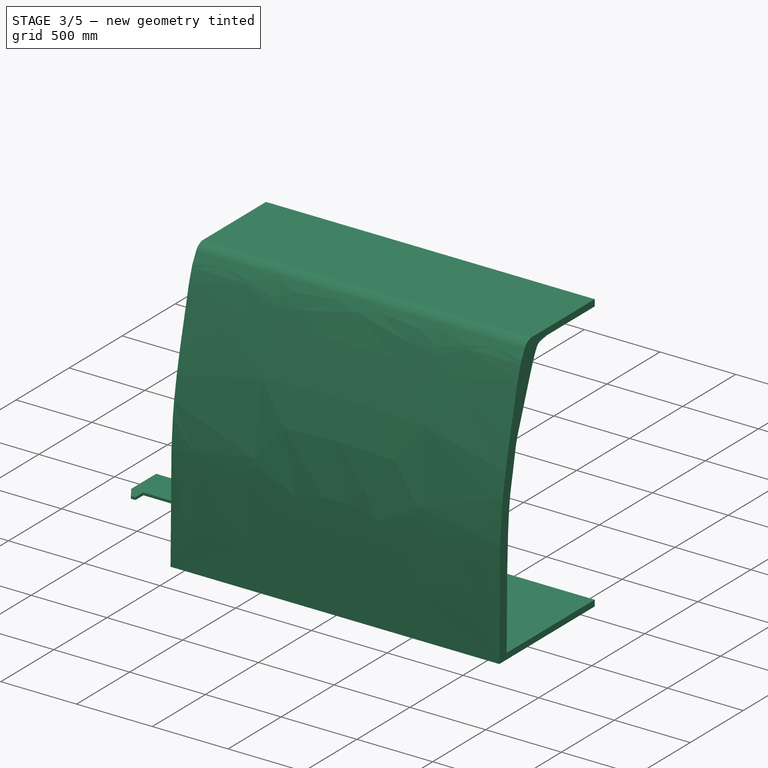
[diagram: stage 3 of 5 — iso view after this stage's code; geometry added in this stage tinted green]
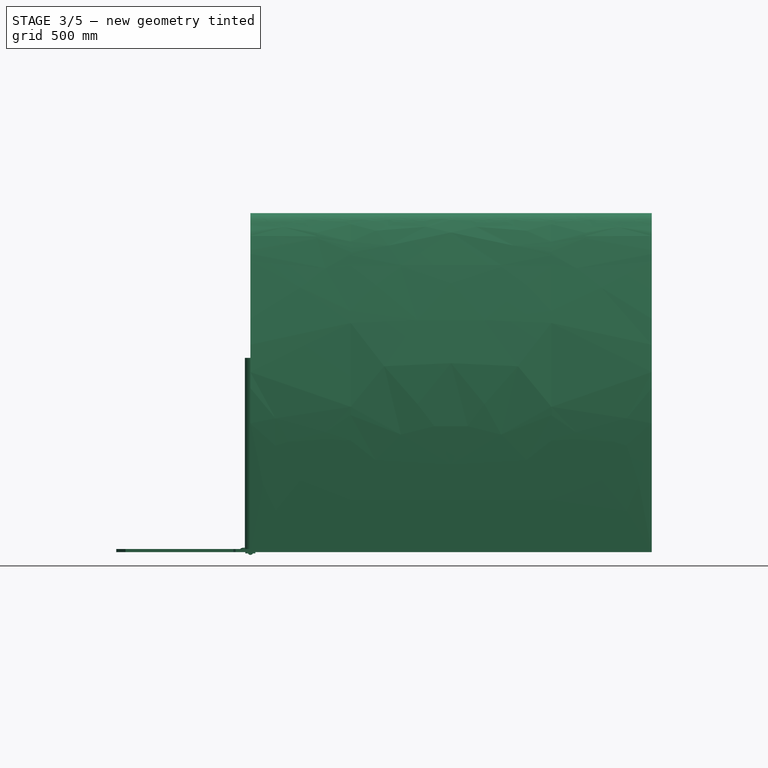
[diagram: stage 3 of 5 — front view after this stage's code; geometry added in this stage tinted green]
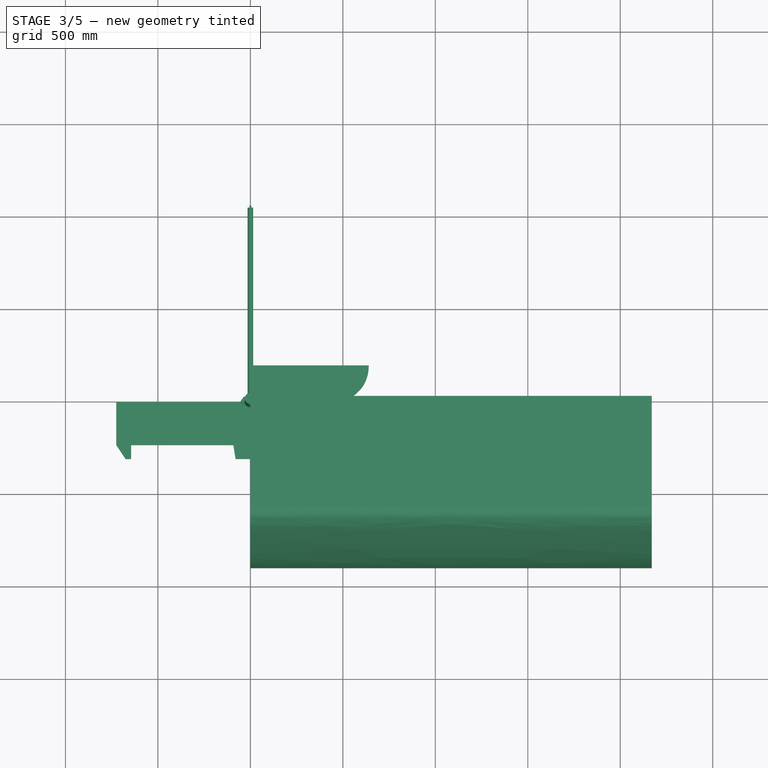
[diagram: stage 3 of 5 — top view after this stage's code; geometry added in this stage tinted green]
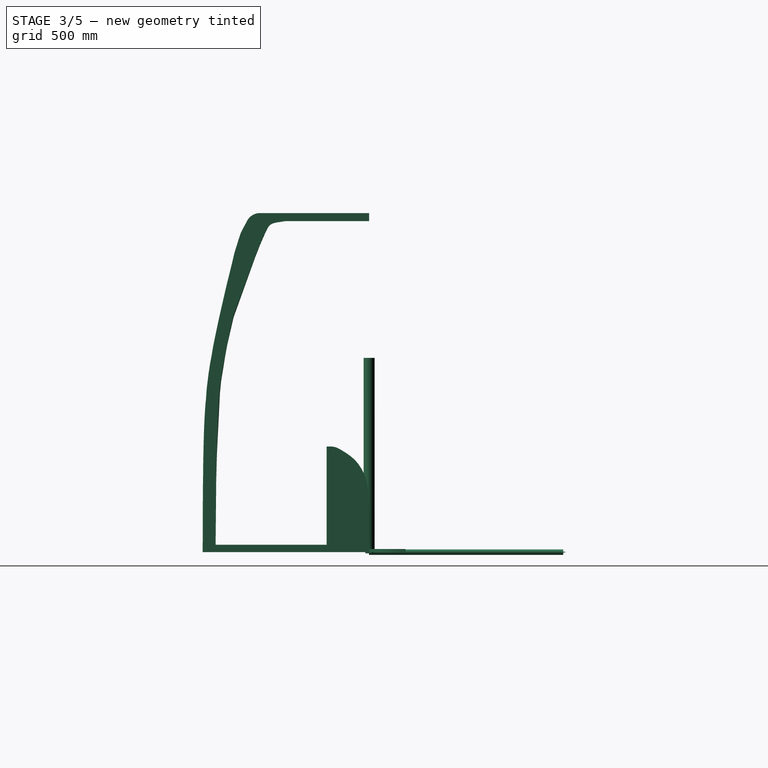
[diagram: stage 3 of 5 — right view after this stage's code; geometry added in this stage tinted green]
FEATURE [PartDesign::Body] Body008  label="Caddy - Screen - Motor001"
  Group = -> [Sketch030,Pad010,MirroredSketch002,Pad011,Sketch031,Pocket019,Sketch032,Pocket020,Sketch033,Pocket021,Sketch034,Pocket022]
  Origin = -> Origin011
  Placement = pos=(0,0,3) rot=(0,0,1;0rad)
  Tip = -> Pocket022
FEATURE [App::Part] Part002  label="Volkswagen - Screen support"
  Group = -> [Body007,Body008]
  License = CC BY 3.0
  LicenseURL = http://creativecommons.org/licenses/by/3.0/
  Origin = -> Origin008
  Placement = pos=(0,69,0) rot=(0,0,1;0rad)
FEATURE [App::DocumentObjectGroup] Group001  label="Outwards"
  Group = -> [Part,Part002]
FEATURE [Sketcher::SketchObject] Sketch035  label="Outter_region003"
  MapMode = 5
  Support = -> [XY_Plane012]
  sketch-geometry (10):
    g0: GeomPoint X=0 Y=28 Z=0
    g1: GeomPoint X=0 Y=-28.07 Z=0
    g2: ArcOfCircle CenterX=-29 CenterY=-15.2502 CenterZ=0 NormalX=0 NormalY=0 NormalZ=1 AngleXU=0 Radius=12.7856 StartAngle=3.22125 EndAngle=4.63751
    g3: ArcOfCircle CenterX=-29 CenterY=15.2527 CenterZ=0 NormalX=0 NormalY=0 NormalZ=1 AngleXU=0 Radius=12.7856 StartAngle=1.64822 EndAngle=3.22125
    g4: LineSegment StartX=-41.7451 StartY=14.2352 StartZ=0 EndX=-41.7451 EndY=-16.2676 EndZ=0
    g5: ArcOfCircle CenterX=29 CenterY=15.2555 CenterZ=0 NormalX=0 NormalY=0 NormalZ=1 AngleXU=0 Radius=12.7856 StartAngle=0.0208341 EndAngle=1.49051
    g6: ArcOfCircle CenterX=29 CenterY=-15.2544 CenterZ=0 NormalX=0 NormalY=0 NormalZ=1 AngleXU=0 Radius=12.7856 StartAngle=4.79159 EndAngle=6.26235
    g7: LineSegment StartX=41.7829 StartY=-15.5208 StartZ=0 EndX=41.7829 EndY=15.5219 EndZ=0
    g8: LineSegment StartX=-29.9889 StartY=28 StartZ=0 EndX=30.0254 EndY=28 EndZ=0
    g9: LineSegment StartX=30.0115 StartY=-28 StartZ=0 EndX=-29.9565 EndY=-28 EndZ=0
  constraints (27):
    c: PointOnObject(g0,g-2)
    c: PointOnObject(g1,g-2)
    c: Coincident(g4,g3)
    c: Coincident(g4,g2)
    c: Vertical(g4)
    c: Coincident(g7,g6)
    c: Coincident(g7,g5)
    c: Vertical(g7)
    c: Coincident(g8,g3)
    c: Coincident(g8,g5)
    c: Horizontal(g8)
    c: Coincident(g9,g6)
    c: Coincident(g9,g2)
    c: Horizontal(g9)
    c: DistanceX(g2,g-1) = 29
    c: DistanceX(g3,g-1) = 29
    c: DistanceX(g-1,g5) = 29
    c: DistanceX(g-1,g6) = 29
    c: Equal(g5,g3)
    c: Equal(g3,g2)
    c: Equal(g2,g6)
    c: DistanceY(g-1,g3) = 28
    c: DistanceX(g3,g-1) = 41.7451
    c: DistanceX(g-1,g5) = 41.7829
    c: DistanceY(g6,g5) = 56
    c: DistanceY(g2,g-1) = 28
    c: DistanceX(g2,g6) = 83.5279
FEATURE [Sketcher::SketchObject] Sketch036  label="Car_socket003"
  AttachmentOffset = pos=(0,0,-7) rot=(0,0,1;0rad)
  MapMode = 5
  Placement = pos=(0,0,-7) rot=(0,0,1;0rad)
  Support = -> [XY_Plane012]
  sketch-geometry (16):
    g0: GeomPoint X=-27 Y=0 Z=0
    g1: GeomPoint X=27 Y=0 Z=0
    g2: GeomPoint X=0 Y=21 Z=0
    g3: GeomPoint X=0 Y=-21 Z=0
    g4: LineSegment StartX=0 StartY=-21 StartZ=0 EndX=-20.1229 EndY=-21 EndZ=0
    g5: LineSegment StartX=0 StartY=-21 StartZ=0 EndX=20.1229 EndY=-21 EndZ=0
    g6: LineSegment StartX=0 StartY=21 StartZ=0 EndX=-20.1229 EndY=21 EndZ=0
    g7: LineSegment StartX=0 StartY=21 StartZ=0 EndX=20.1229 EndY=21 EndZ=0
    g8: LineSegment StartX=-27 StartY=0 StartZ=0 EndX=-27 EndY=14.1229 EndZ=0
    g9: LineSegment StartX=-27 StartY=0 StartZ=0 EndX=-27 EndY=-14.1229 EndZ=0
    g10: LineSegment StartX=27 StartY=0 StartZ=0 EndX=27 EndY=-14.1229 EndZ=0
    g11: LineSegment StartX=27 StartY=0 StartZ=0 EndX=27 EndY=14.1229 EndZ=0
    g12: ArcOfCircle CenterX=20.1229 CenterY=14.1229 CenterZ=0 NormalX=0 NormalY=0 NormalZ=1 AngleXU=0 Radius=6.87711 StartAngle=0 EndAngle=1.5708
    g13: ArcOfCircle CenterX=-20.1229 CenterY=14.1229 CenterZ=0 NormalX=0 NormalY=0 NormalZ=1 AngleXU=0 Radius=6.87711 StartAngle=1.5708 EndAngle=3.14159
    g14: ArcOfCircle CenterX=-20.1229 CenterY=-14.1229 CenterZ=0 NormalX=0 NormalY=0 NormalZ=1 AngleXU=0 Radius=6.87711 StartAngle=3.14159 EndAngle=4.71239
    g15: ArcOfCircle CenterX=20.1229 CenterY=-14.1229 CenterZ=0 NormalX=0 NormalY=0 NormalZ=1 AngleXU=0 Radius=6.87711 StartAngle=4.71239 EndAngle=6.28319
  constraints (36):
    c: PointOnObject(g0,g-1)
    c: PointOnObject(g1,g-1)
    c: PointOnObject(g2,g-2)
    c: PointOnObject(g3,g-2)
    c: DistanceX(g0,g-1) = 27
    c: DistanceY(g-1,g2) = 21
    c: Coincident(g4,g3)
    c: Horizontal(g4)
    c: Coincident(g5,g3)
    c: Horizontal(g5)
    c: Coincident(g6,g2)
    c: Horizontal(g6)
    c: Coincident(g7,g2)
    c: Horizontal(g7)
    c: Coincident(g8,g0)
    c: Vertical(g8)
    c: Coincident(g9,g0)
    c: Vertical(g9)
    c: Coincident(g10,g1)
    c: Vertical(g10)
    c: Coincident(g11,g1)
    c: Vertical(g11)
    c: Tangent(g7,g12) = 1.5708
    c: Tangent(g11,g12) = -1.5708
    c: Tangent(g8,g13) = 1.5708
    c: Tangent(g6,g13) = -1.5708
    c: Tangent(g9,g14) = -1.5708
    c: Tangent(g4,g14) = 1.5708
    c: Tangent(g5,g15) = -1.5708
    c: Tangent(g10,g15) = 1.5708
    c: Equal(g9,g10)
    c: Equal(g10,g11)
    c: Equal(g11,g8)
    c: Equal(g6,g7)
    c: Equal(g7,g5)
    c: Equal(g5,g4)
FEATURE [PartDesign::Pad] Pad012  label="Solid_outter_part003"
  Length = 6
  Length2 = 100
  Profile = -> Sketch035
  Type = 0
FEATURE [PartDesign::Pad] Pad013  label="Solid_socket003"
  BaseFeature = -> Pad012
  Length = 8
  Length2 = 100
  Profile = -> Sketch036
  Type = 0
FEATURE [PartDesign::Fillet] Fillet003
  Base = -> Pad013 [Edge29,Edge28,Edge4,Edge10,Edge7,Edge32,Edge31,Edge30]
  BaseFeature = -> Pad013
  Radius = 4
FEATURE [Sketcher::SketchObject] Sketch037  label="screw_trough_hole003"
  AttachmentOffset = pos=(-6,-4,12) rot=(1,0,0;0.261799rad)
  MapMode = 5
  Placement = pos=(-6,-4,12) rot=(1,0,0;0.261799rad)
  Support = -> [XY_Plane012]
  sketch-geometry (1):
    g0: Circle CenterX=0 CenterY=0 CenterZ=0 NormalX=0 NormalY=0 NormalZ=1 AngleXU=0 Radius=5
  constraints (2):
    c: Coincident(g0,g-1)
    c: Radius(g0) = 5
FEATURE [Sketcher::SketchObject] Sketch038  label="screw_head_socket003"
  AttachmentOffset = pos=(-6,-4,12) rot=(1,0,0;0.261799rad)
  MapMode = 5
  Placement = pos=(-6,-4,12) rot=(1,0,0;0.261799rad)
  Support = -> [XY_Plane012]
  sketch-geometry (1):
    g0: Circle CenterX=0 CenterY=0 CenterZ=0 NormalX=0 NormalY=0 NormalZ=1 AngleXU=0 Radius=10
  constraints (2):
    c: Coincident(g0,g-1)
    c: Radius(g0) = 10
FEATURE [PartDesign::Pocket] Pocket023
  BaseFeature = -> Fillet003
  Length = 13
  Length2 = 100
  Profile = -> Sketch038
  Type = 0
FEATURE [PartDesign::Pocket] Pocket024  label="Solid_screw_trough_hole003"
  BaseFeature = -> Pocket023
  Length = 28
  Length2 = 100
  Profile = -> Sketch037
  Type = 0
FEATURE [PartDesign::Body] Body011  label="Body - Left003"
  Group = -> [Sketch035,Sketch036,Pad012,Pad013,Fillet003,Sketch038,Sketch037,Pocket023,Pocket024]
  Origin = -> Origin012
  Tip = -> Pocket024
FEATURE [Sketcher::SketchObject] Sketch039
  MapMode = 5
  Support = -> [XY_Plane013]
  sketch-geometry (29):
    g0: LineSegment StartX=-9.58978 StartY=13.5 StartZ=0 EndX=16.3044 EndY=13.5 EndZ=0
    g1-g5: Circle [constr] x5 (B-spline internal-alignment scaffolding for g6; pole/knot coordinates omitted)
    g6: BSplineCurve PolesCount=5 KnotsCount=3 Degree=3 IsPeriodic=0
    g7: GeomPoint [constr] X=16.3044 Y=13.5 Z=0
    g8: GeomPoint [constr] X=27.9019 Y=10.9729 Z=0
    g9: GeomPoint [constr] X=36.883 Y=3.99632 Z=0
    g10: LineSegment StartX=-9.47542 StartY=18.5 StartZ=0 EndX=16.4188 EndY=18.5 EndZ=0
    g11-g14: Circle [constr] x4 (B-spline internal-alignment scaffolding for g15; pole/knot coordinates omitted)
    g15: BSplineCurve PolesCount=4 KnotsCount=2 Degree=3 IsPeriodic=0
    g16: GeomPoint [constr] X=16.4188 Y=18.5 Z=0
    g17: GeomPoint [constr] X=36.883 Y=3.99632 Z=0
    g18: Circle [constr] CenterX=-9.47542 CenterY=18.5 CenterZ=0 NormalX=0 NormalY=0 NormalZ=1 AngleXU=0 Radius=5
    g19: Circle [constr] CenterX=-37.3482 CenterY=18.4799 CenterZ=0 NormalX=0 NormalY=0 NormalZ=1 AngleXU=0 Radius=5
    g20: Circle [constr] CenterX=-45.9357 CenterY=14.9697 CenterZ=0 NormalX=0 NormalY=0 NormalZ=1 AngleXU=0 Radius=5
    g21: Circle [constr] CenterX=-52.392 CenterY=5.81805 CenterZ=0 NormalX=0 NormalY=0 NormalZ=1 AngleXU=0 Radius=5
    g22: Circle [constr] CenterX=-53.9591 CenterY=0 CenterZ=0 NormalX=0 NormalY=0 NormalZ=1 AngleXU=0 Radius=5
    g23: BSplineCurve PolesCount=5 KnotsCount=3 Degree=3 IsPeriodic=0
    g24: GeomPoint [constr] X=-9.47542 Y=18.5 Z=0
    g25: GeomPoint [constr] X=-45.4029 Y=13.5593 Z=0
    g26: GeomPoint [constr] X=-53.9591 Y=0 Z=0
    g27: ArcOfCircle CenterX=-9.0071 CenterY=2.11284e-05 CenterZ=0 NormalX=0 NormalY=0 NormalZ=1 AngleXU=0 Radius=13.5125 StartAngle=1.61393 EndAngle=3.14159
    g28: LineSegment StartX=-22.5197 StartY=0 StartZ=0 EndX=-53.9591 EndY=0 EndZ=0
  constraints (33):
    c: Horizontal(g0)
    c: DistanceY(g-1,g0) = 13.5
    c: Coincident(g1,g0)
    c: Radius(g1) = 2
    c: Equal(g1,g2)
    c: PointOnObject(g2,g1)
    c: Equal(g1,g3)
    c: Equal(g1,g4)
    c: Equal(g1,g5)
    c: InternalAlignment(g1-g5 -> g6) x5
    c: InternalAlignment(g7,g6)
    c: InternalAlignment(g8,g6)
    c: InternalAlignment(g9,g6)
    c: Horizontal(g10)
    c: DistanceY(g0,g10) = 5
    c: Equal(g10,g0)
    c: Coincident(g11,g10)
    c: Radius(g11) = 2
    c: Equal(g11,g12)
    c: Equal(g11,g13)
    c: Equal(g11,g14)
    c: Coincident(g14,g5)
    c: InternalAlignment(g11-g14 -> g15) x4
    c: InternalAlignment(g16,g15)
    c: InternalAlignment(g17,g15)
    c: Coincident(g18,g10)
    c: Radius(g18) = 5
    c: Equal(g18, g19-g22) x4
    c: Coincident(g27,g0)
    c: PointOnObject(g27,g-1)
    c: Coincident(g28,g27)
    c: Coincident(g28,g22)
    c: Horizontal(g28)
FEATURE [Sketcher::SketchObject] MirroredSketch003
  sketch-geometry (29):
    g0: LineSegment StartX=-9.27509 StartY=-13.5 StartZ=0 EndX=16.7793 EndY=-13.5 EndZ=0
    g1: Circle [constr] CenterX=16.7793 CenterY=-13.5 CenterZ=0 NormalX=0 NormalY=0 NormalZ=1 AngleXU=0 Radius=2
    g2: Circle [constr] CenterX=18.7793 CenterY=-13.5016 CenterZ=0 NormalX=0 NormalY=0 NormalZ=1 AngleXU=0 Radius=2
    g3: Circle [constr] CenterX=30.2613 CenterY=-12.3004 CenterZ=0 NormalX=0 NormalY=0 NormalZ=1 AngleXU=0 Radius=2
    g4: Circle [constr] CenterX=32.7805 CenterY=-5.78943 CenterZ=0 NormalX=0 NormalY=0 NormalZ=1 AngleXU=0 Radius=2
    g5: Circle [constr] CenterX=36.883 CenterY=-3.99632 CenterZ=0 NormalX=0 NormalY=0 NormalZ=1 AngleXU=0 Radius=2
    g6: BSplineCurve PolesCount=5 KnotsCount=3 Degree=3 IsPeriodic=0
    g7: GeomPoint [constr] X=16.7793 Y=-13.5 Z=0
    g8: GeomPoint [constr] X=28.0206 Y=-10.973 Z=0
    g9: GeomPoint [constr] X=36.883 Y=-3.99632 Z=0
    g10: LineSegment StartX=-9.47542 StartY=-18.5 StartZ=0 EndX=16.579 EndY=-18.5 EndZ=0
    g11: Circle [constr] CenterX=16.579 CenterY=-18.5 CenterZ=0 NormalX=0 NormalY=0 NormalZ=1 AngleXU=0 Radius=2
    g12: Circle [constr] CenterX=30.0728 CenterY=-14.9629 CenterZ=0 NormalX=0 NormalY=0 NormalZ=1 AngleXU=0 Radius=2
    g13: Circle [constr] CenterX=31.6104 CenterY=-10.0592 CenterZ=0 NormalX=0 NormalY=0 NormalZ=1 AngleXU=0 Radius=2
    g14: Circle [constr] CenterX=36.883 CenterY=-3.99632 CenterZ=0 NormalX=0 NormalY=0 NormalZ=1 AngleXU=0 Radius=2
    g15: BSplineCurve PolesCount=4 KnotsCount=2 Degree=3 IsPeriodic=0
    g16: GeomPoint [constr] X=16.579 Y=-18.5 Z=0
    g17: GeomPoint [constr] X=36.883 Y=-3.99632 Z=0
    g18: Circle [constr] CenterX=-9.47542 CenterY=-18.5 CenterZ=0 NormalX=0 NormalY=0 NormalZ=1 AngleXU=0 Radius=5
    g19: Circle [constr] CenterX=-37.3482 CenterY=-18.4799 CenterZ=0 NormalX=0 NormalY=0 NormalZ=1 AngleXU=0 Radius=5
    g20: Circle [constr] CenterX=-45.9357 CenterY=-14.9697 CenterZ=0 NormalX=0 NormalY=0 NormalZ=1 AngleXU=0 Radius=5
    g21: Circle [constr] CenterX=-52.392 CenterY=-5.81805 CenterZ=0 NormalX=0 NormalY=0 NormalZ=1 AngleXU=0 Radius=5
    g22: Circle [constr] CenterX=-53.9591 CenterY=5e-12 CenterZ=0 NormalX=0 NormalY=0 NormalZ=1 AngleXU=0 Radius=5
    g23: BSplineCurve PolesCount=5 KnotsCount=3 Degree=3 IsPeriodic=0
    g24: GeomPoint [constr] X=-9.47542 Y=-18.5 Z=0
    g25: GeomPoint [constr] X=-45.4029 Y=-13.5593 Z=0
    g26: GeomPoint [constr] X=-53.9591 Y=0 Z=0
    g27: ArcOfCircle CenterX=-9.0071 CenterY=-4.95926e-06 CenterZ=0 NormalX=0 NormalY=0 NormalZ=1 AngleXU=0 Radius=13.5027 StartAngle=3.14159 EndAngle=4.69254
    g28: LineSegment StartX=-22.5098 StartY=5e-12 StartZ=0 EndX=-53.9591 EndY=5e-12 EndZ=0
  constraints (23):
    c: Horizontal(g0)
    c: Coincident(g1,g0)
    c: Radius(g1) = 2
    c: Equal(g1,g2)
    c: PointOnObject(g2,g1)
    c: Equal(g1,g3)
    c: Equal(g1,g4)
    c: Equal(g1,g5)
    c: Horizontal(g10)
    c: Equal(g10,g0)
    c: Coincident(g11,g10)
    c: Radius(g11) = 2
    c: Equal(g11,g12)
    c: Equal(g11,g13)
    c: Equal(g11,g14)
    c: Coincident(g14,g5)
    c: Coincident(g18,g10)
    c: Radius(g18) = 5
    c: Equal(g18, g19-g22) x4
    c: Coincident(g27,g0)
    c: Coincident(g28,g27)
    c: Coincident(g28,g22)
    c: Horizontal(g28)
FEATURE [PartDesign::Pad] Pad014
  Length = 30
  Length2 = 100
  Profile = -> Sketch039
  Type = 0
FEATURE [PartDesign::Pad] Pad015
  BaseFeature = -> Pad014
  Length = 30
  Length2 = 100
  Profile = -> MirroredSketch003
  Type = 0
FEATURE [Sketcher::SketchObject] Sketch040
  MapMode = 5
  Placement = pos=(0,0,0) rot=(1,0,0;1.5708rad)
  Support = -> [XZ_Plane013]
  sketch-geometry (31):
    g0-g13: Circle [constr] x14 (B-spline internal-alignment scaffolding for g14; pole/knot coordinates omitted)
    g14: BSplineCurve PolesCount=14 KnotsCount=12 Degree=3 IsPeriodic=0
    g15-g26: GeomPoint [constr] x12 (B-spline internal-alignment scaffolding for g14; pole/knot coordinates omitted)
    g27: LineSegment StartX=-54.0267 StartY=16.4728 StartZ=0 EndX=-67.1158 EndY=16.5807 EndZ=0
    g28: LineSegment StartX=-67.1158 StartY=16.5807 StartZ=0 EndX=-67.1158 EndY=-12.0404 EndZ=0
    g29: LineSegment StartX=-67.1158 StartY=-12.0404 StartZ=0 EndX=-30.5191 EndY=-12.0404 EndZ=0
    g30: LineSegment StartX=-30.5191 StartY=-12.0404 StartZ=0 EndX=-24.537 EndY=-5.96273 EndZ=0
  constraints (10):
    c: Equal(g0, g1-g13) x13
    c: InternalAlignment(g0-g13 -> g14) x14
    c: InternalAlignment(g15-g26 -> g14) x12
    c: Coincident(g27,g13)
    c: Coincident(g28,g27)
    c: Vertical(g28)
    c: Coincident(g29,g28)
    c: Horizontal(g29)
    c: Coincident(g30,g29)
    c: Coincident(g30,g0)
FEATURE [PartDesign::Pocket] Pocket025
  BaseFeature = -> Pad015
  Length = 40
  Length2 = 100
  Midplane = true
  Profile = -> Sketch040
  Type = 0
FEATURE [Sketcher::SketchObject] Sketch041
  MapMode = 5
  Placement = pos=(0,0,0) rot=(1,0,0;1.5708rad)
  Support = -> [XZ_Plane013]
  sketch-geometry (34):
    g0-g14: Circle [constr] x15 (B-spline internal-alignment scaffolding for g15; pole/knot coordinates omitted)
    g15: BSplineCurve PolesCount=15 KnotsCount=13 Degree=3 IsPeriodic=0
    g16: GeomPoint [constr] X=37.0012 Y=0 Z=0
    g17: GeomPoint [constr] X=34.2626 Y=1.51967 Z=0
    g18: GeomPoint [constr] X=31.196 Y=2.3893 Z=0
    g19: GeomPoint [constr] X=27.6107 Y=3.2818 Z=0
    g20: GeomPoint [constr] X=22.1336 Y=4.44893 Z=0
    g21: GeomPoint [constr] X=12.7546 Y=6.13478 Z=0
    g22: GeomPoint [constr] X=-1.22035 Y=8.3012 Z=0
    g23: GeomPoint [constr] X=-17.4348 Y=11.6069 Z=0
    g24: GeomPoint [constr] X=-24.3733 Y=16.7582 Z=0
    g25: GeomPoint [constr] X=-26.6354 Y=22.1109 Z=0
    g26: GeomPoint [constr] X=-27.9265 Y=27.1917 Z=0
    g27: GeomPoint [constr] X=-29.3353 Y=29.3697 Z=0
    g28: GeomPoint [constr] X=-30.6853 Y=30.3483 Z=0
    g29: LineSegment StartX=49.5259 StartY=7.28546 StartZ=0 EndX=37.4444 EndY=0 EndZ=0
    g30: LineSegment StartX=49.5259 StartY=7.28546 StartZ=0 EndX=49.5259 EndY=21.3368 EndZ=0
    g31: LineSegment StartX=-30.572 StartY=21.2812 StartZ=0 EndX=-30.572 EndY=45.33 EndZ=0
    g32: LineSegment StartX=-30.572 StartY=45.33 StartZ=0 EndX=49.5259 EndY=45.33 EndZ=0
    g33: LineSegment StartX=49.5259 StartY=21.3368 StartZ=0 EndX=49.5259 EndY=45.33 EndZ=0
  constraints (14):
    c: PointOnObject(g0,g-1)
    c: Radius(g0) = 0.2
    c: Equal(g0, g1-g14) x14
    c: InternalAlignment(g0-g14 -> g15) x15
    c: Coincident(g29,g0)
    c: Coincident(g30,g29)
    c: Vertical(g30)
    c: Coincident(g31,g14)
    c: Vertical(g31)
    c: Coincident(g32,g31)
    c: Horizontal(g32)
    c: Coincident(g33,g30)
    c: Coincident(g33,g32)
    c: Vertical(g33)
FEATURE [PartDesign::Pocket] Pocket026
  BaseFeature = -> Pocket025
  Length = 43
  Length2 = 100
  Midplane = true
  Profile = -> Sketch041
  Type = 0
FEATURE [Sketcher::SketchObject] Sketch042
  AttachmentOffset = pos=(-41,-4,20) rot=(1,0,0;0.523599rad)
  MapMode = 5
  Placement = pos=(-41,-4,20) rot=(1,0,0;0.523599rad)
  Support = -> [XY_Plane013]
  sketch-geometry (4):
    g0: LineSegment StartX=-6 StartY=-2.5 StartZ=0 EndX=6 EndY=-2.5 EndZ=0
    g1: LineSegment StartX=6 StartY=-2.5 StartZ=0 EndX=6 EndY=2.5 EndZ=0
    g2: LineSegment StartX=6 StartY=2.5 StartZ=0 EndX=-6 EndY=2.5 EndZ=0
    g3: LineSegment StartX=-6 StartY=2.5 StartZ=0 EndX=-6 EndY=-2.5 EndZ=0
  constraints (12):
    c: Coincident(g0,g1)
    c: Coincident(g1,g2)
    c: Coincident(g2,g3)
    c: Coincident(g3,g0)
    c: Horizontal(g0)
    c: Horizontal(g2)
    c: Vertical(g1)
    c: Vertical(g3)
    c: DistanceX(g0,g-1) = 6
    c: DistanceY(g0,g-1) = 2.5
    c: DistanceY(g0,g2) = 5
    c: DistanceX(g-1,g1) = 6
FEATURE [PartDesign::Pocket] Pocket027
  BaseFeature = -> Pocket026
  Length = 12
  Length2 = 100
  Profile = -> Sketch042
  Type = 0
FEATURE [Sketcher::SketchObject] Sketch043
  AttachmentOffset = pos=(0,-14,-55) rot=(0,1,0;3.14159rad)
  MapMode = 5
  Placement = pos=(-55,5e-12,-14) rot=(-0.57735,0.57735,0.57735;4.18879rad)
  Support = -> [YZ_Plane013]
  sketch-geometry (4):
    g0: LineSegment StartX=20.3937 StartY=21.2855 StartZ=0 EndX=-19.9117 EndY=35.9554 EndZ=0
    g1: LineSegment StartX=-19.9117 StartY=35.9554 StartZ=0 EndX=-19.9117 EndY=49.4342 EndZ=0
    g2: LineSegment StartX=20.3937 StartY=49.4342 StartZ=0 EndX=-19.9117 EndY=49.4342 EndZ=0
    g3: LineSegment StartX=20.3937 StartY=49.4342 StartZ=0 EndX=20.3937 EndY=21.2855 EndZ=0
  constraints (8):
    c: Coincident(g1,g0)
    c: Vertical(g1)
    c: Coincident(g2,g1)
    c: Horizontal(g2)
    c: Coincident(g3,g2)
    c: Coincident(g3,g0)
    c: Vertical(g3)
    c: Angle(g3,g0) = 1.22173
FEATURE [PartDesign::Pocket] Pocket028
  BaseFeature = -> Pocket027
  Length = 56
  Length2 = 100
  Profile = -> Sketch043
  Type = 0
FEATURE [PartDesign::Pocket] Pocket030  label="Solid_screw_trough_hole004"
  BaseFeature = -> Pocket029
  Length = 28
  Length2 = 100
  Profile = -> Sketch046
  Type = 0
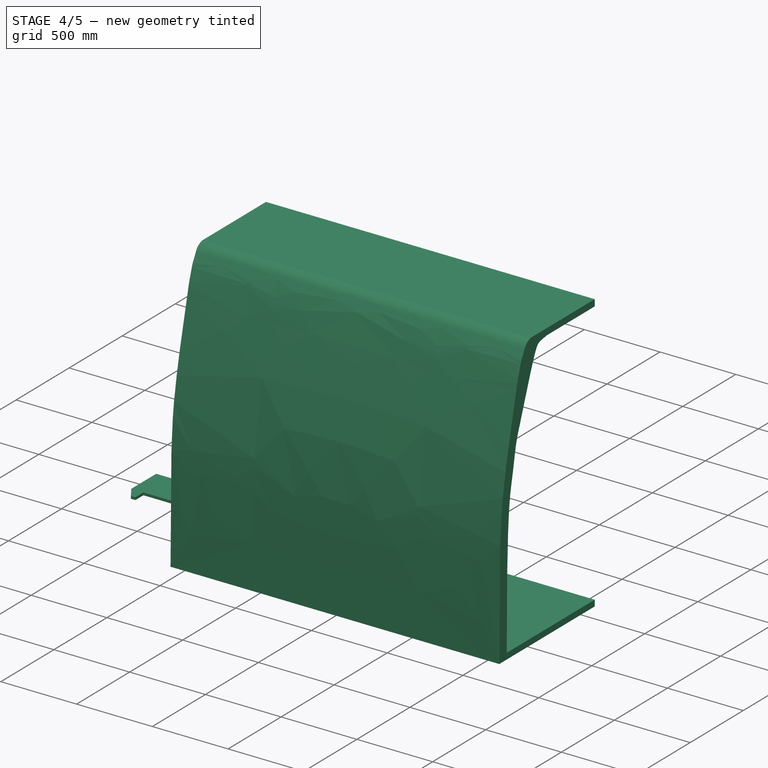
[diagram: stage 4 of 5 — iso view after this stage's code; geometry added in this stage tinted green]
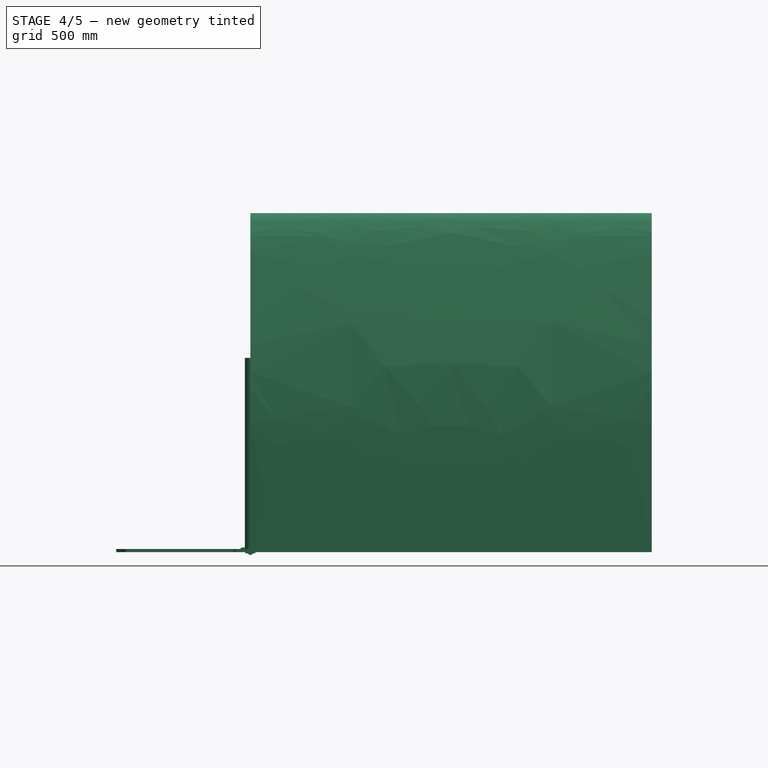
[diagram: stage 4 of 5 — front view after this stage's code; geometry added in this stage tinted green]
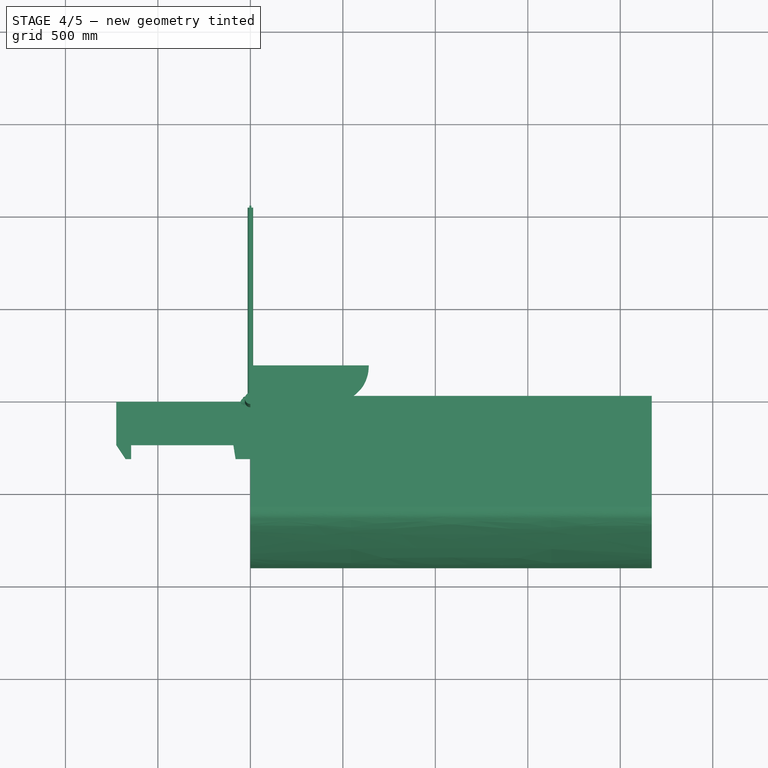
[diagram: stage 4 of 5 — top view after this stage's code; geometry added in this stage tinted green]
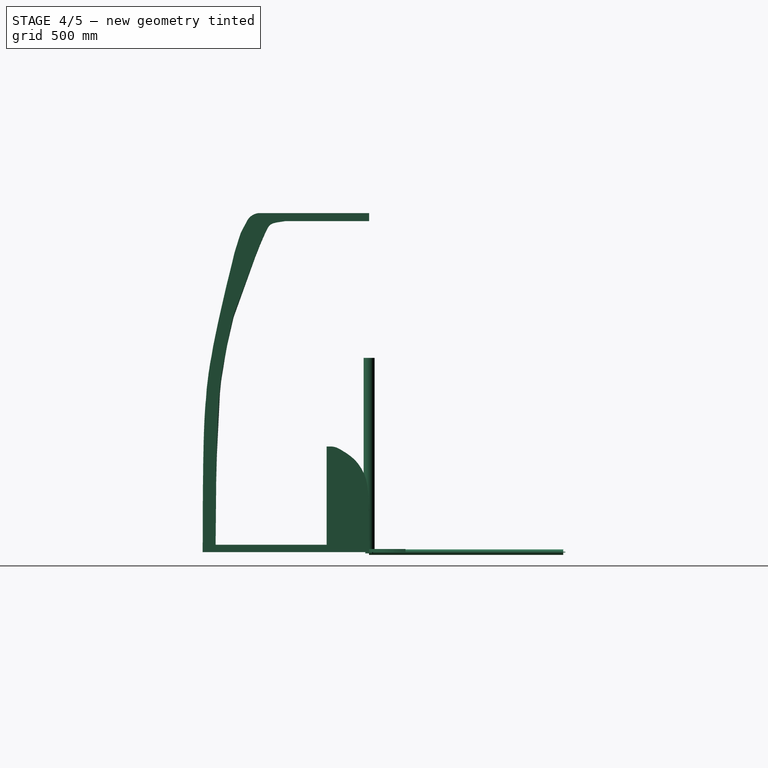
[diagram: stage 4 of 5 — right view after this stage's code; geometry added in this stage tinted green]
FEATURE [PartDesign::Body] Body001  label="Caddy - Screen - Motor"
  Group = -> [Sketch004,Pad002,MirroredSketch,Pad003,Sketch005,Pocket002,Sketch006,Pocket003,Sketch007,Pocket004,Sketch016,Pocket010]
  Origin = -> Origin002
  Placement = pos=(0,0,3) rot=(-1,0,0;0rad)
  Tip = -> Pocket010
FEATURE [App::Part] Part  label="Volkswagen - Screen motor"
  Group = -> [Body,Body001]
  License = CC BY 3.0
  LicenseURL = http://creativecommons.org/licenses/by/3.0/
  Origin = -> Origin
FEATURE [Sketcher::SketchObject] Sketch026  label="Outter_region002"
  MapMode = 5
  Support = -> [XY_Plane009]
  sketch-geometry (10):
    g0: GeomPoint X=0 Y=28 Z=0
    g1: GeomPoint X=0 Y=-28.07 Z=0
    g2: ArcOfCircle CenterX=-29 CenterY=-15.2502 CenterZ=0 NormalX=0 NormalY=0 NormalZ=1 AngleXU=0 Radius=12.7856 StartAngle=3.22125 EndAngle=4.63751
    g3: ArcOfCircle CenterX=-29 CenterY=15.2527 CenterZ=0 NormalX=0 NormalY=0 NormalZ=1 AngleXU=0 Radius=12.7856 StartAngle=1.64822 EndAngle=3.22125
    g4: LineSegment StartX=-41.7451 StartY=14.2352 StartZ=0 EndX=-41.7451 EndY=-16.2676 EndZ=0
    g5: ArcOfCircle CenterX=29 CenterY=15.2555 CenterZ=0 NormalX=0 NormalY=0 NormalZ=1 AngleXU=0 Radius=12.7856 StartAngle=0.0208341 EndAngle=1.49051
    g6: ArcOfCircle CenterX=29 CenterY=-15.2544 CenterZ=0 NormalX=0 NormalY=0 NormalZ=1 AngleXU=0 Radius=12.7856 StartAngle=4.79159 EndAngle=6.26235
    g7: LineSegment StartX=41.7829 StartY=-15.5208 StartZ=0 EndX=41.7829 EndY=15.5219 EndZ=0
    g8: LineSegment StartX=-29.9889 StartY=28 StartZ=0 EndX=30.0254 EndY=28 EndZ=0
    g9: LineSegment StartX=30.0115 StartY=-28 StartZ=0 EndX=-29.9565 EndY=-28 EndZ=0
  constraints (27):
    c: PointOnObject(g0,g-2)
    c: PointOnObject(g1,g-2)
    c: Coincident(g4,g3)
    c: Coincident(g4,g2)
    c: Vertical(g4)
    c: Coincident(g7,g6)
    c: Coincident(g7,g5)
    c: Vertical(g7)
    c: Coincident(g8,g3)
    c: Coincident(g8,g5)
    c: Horizontal(g8)
    c: Coincident(g9,g6)
    c: Coincident(g9,g2)
    c: Horizontal(g9)
    c: DistanceX(g2,g-1) = 29
    c: DistanceX(g3,g-1) = 29
    c: DistanceX(g-1,g5) = 29
    c: DistanceX(g-1,g6) = 29
    c: Equal(g5,g3)
    c: Equal(g3,g2)
    c: Equal(g2,g6)
    c: DistanceY(g-1,g3) = 28
    c: DistanceX(g3,g-1) = 41.7451
    c: DistanceX(g-1,g5) = 41.7829
    c: DistanceY(g6,g5) = 56
    c: DistanceY(g2,g-1) = 28
    c: DistanceX(g2,g6) = 83.5279
FEATURE [Sketcher::SketchObject] Sketch027  label="Car_socket002"
  AttachmentOffset = pos=(0,0,-7) rot=(0,0,1;0rad)
  MapMode = 5
  Placement = pos=(0,0,-7) rot=(0,0,1;0rad)
  Support = -> [XY_Plane009]
  sketch-geometry (16):
    g0: GeomPoint X=-27 Y=0 Z=0
    g1: GeomPoint X=27 Y=0 Z=0
    g2: GeomPoint X=0 Y=21 Z=0
    g3: GeomPoint X=0 Y=-21 Z=0
    g4: LineSegment StartX=0 StartY=-21 StartZ=0 EndX=-20.1229 EndY=-21 EndZ=0
    g5: LineSegment StartX=0 StartY=-21 StartZ=0 EndX=20.1229 EndY=-21 EndZ=0
    g6: LineSegment StartX=0 StartY=21 StartZ=0 EndX=-20.1229 EndY=21 EndZ=0
    g7: LineSegment StartX=0 StartY=21 StartZ=0 EndX=20.1229 EndY=21 EndZ=0
    g8: LineSegment StartX=-27 StartY=0 StartZ=0 EndX=-27 EndY=14.1229 EndZ=0
    g9: LineSegment StartX=-27 StartY=0 StartZ=0 EndX=-27 EndY=-14.1229 EndZ=0
    g10: LineSegment StartX=27 StartY=0 StartZ=0 EndX=27 EndY=-14.1229 EndZ=0
    g11: LineSegment StartX=27 StartY=0 StartZ=0 EndX=27 EndY=14.1229 EndZ=0
    g12: ArcOfCircle CenterX=20.1229 CenterY=14.1229 CenterZ=0 NormalX=0 NormalY=0 NormalZ=1 AngleXU=0 Radius=6.87711 StartAngle=0 EndAngle=1.5708
    g13: ArcOfCircle CenterX=-20.1229 CenterY=14.1229 CenterZ=0 NormalX=0 NormalY=0 NormalZ=1 AngleXU=0 Radius=6.87711 StartAngle=1.5708 EndAngle=3.14159
    g14: ArcOfCircle CenterX=-20.1229 CenterY=-14.1229 CenterZ=0 NormalX=0 NormalY=0 NormalZ=1 AngleXU=0 Radius=6.87711 StartAngle=3.14159 EndAngle=4.71239
    g15: ArcOfCircle CenterX=20.1229 CenterY=-14.1229 CenterZ=0 NormalX=0 NormalY=0 NormalZ=1 AngleXU=0 Radius=6.87711 StartAngle=4.71239 EndAngle=6.28319
  constraints (36):
    c: PointOnObject(g0,g-1)
    c: PointOnObject(g1,g-1)
    c: PointOnObject(g2,g-2)
    c: PointOnObject(g3,g-2)
    c: DistanceX(g0,g-1) = 27
    c: DistanceY(g-1,g2) = 21
    c: Coincident(g4,g3)
    c: Horizontal(g4)
    c: Coincident(g5,g3)
    c: Horizontal(g5)
    c: Coincident(g6,g2)
    c: Horizontal(g6)
    c: Coincident(g7,g2)
    c: Horizontal(g7)
    c: Coincident(g8,g0)
    c: Vertical(g8)
    c: Coincident(g9,g0)
    c: Vertical(g9)
    c: Coincident(g10,g1)
    c: Vertical(g10)
    c: Coincident(g11,g1)
    c: Vertical(g11)
    c: Tangent(g7,g12) = 1.5708
    c: Tangent(g11,g12) = -1.5708
    c: Tangent(g8,g13) = 1.5708
    c: Tangent(g6,g13) = -1.5708
    c: Tangent(g9,g14) = -1.5708
    c: Tangent(g4,g14) = 1.5708
    c: Tangent(g5,g15) = -1.5708
    c: Tangent(g10,g15) = 1.5708
    c: Equal(g9,g10)
    c: Equal(g10,g11)
    c: Equal(g11,g8)
    c: Equal(g6,g7)
    c: Equal(g7,g5)
    c: Equal(g5,g4)
FEATURE [PartDesign::Pad] Pad008  label="Solid_outter_part002"
  Length = 6
  Length2 = 100
  Profile = -> Sketch026
  Type = 0
FEATURE [PartDesign::Pad] Pad009  label="Solid_socket002"
  BaseFeature = -> Pad008
  Length = 8
  Length2 = 100
  Profile = -> Sketch027
  Type = 0
FEATURE [PartDesign::Fillet] Fillet002
  Base = -> Pad009 [Edge29,Edge28,Edge4,Edge10,Edge7,Edge32,Edge31,Edge30]
  BaseFeature = -> Pad009
  Radius = 4
FEATURE [Sketcher::SketchObject] Sketch028  label="screw_trough_hole002"
  AttachmentOffset = pos=(-6,3,12) rot=(1,0,0;-0.261799rad)
  MapMode = 5
  Placement = pos=(-6,3,12) rot=(1,0,0;6.02139rad)
  Support = -> [XY_Plane009]
  sketch-geometry (1):
    g0: Circle CenterX=0 CenterY=0 CenterZ=0 NormalX=0 NormalY=0 NormalZ=1 AngleXU=0 Radius=5
  constraints (2):
    c: Coincident(g0,g-1)
    c: Radius(g0) = 5
FEATURE [Sketcher::SketchObject] Sketch029  label="screw_head_socket002"
  AttachmentOffset = pos=(-6,3,12) rot=(1,0,0;-0.261799rad)
  MapMode = 5
  Placement = pos=(-6,3,12) rot=(1,0,0;6.02139rad)
  Support = -> [XY_Plane009]
  sketch-geometry (1):
    g0: Circle CenterX=0 CenterY=0 CenterZ=0 NormalX=0 NormalY=0 NormalZ=1 AngleXU=0 Radius=10
  constraints (2):
    c: Coincident(g0,g-1)
    c: Radius(g0) = 10
FEATURE [PartDesign::Pocket] Pocket017
  BaseFeature = -> Fillet002
  Length = 13
  Length2 = 100
  Profile = -> Sketch029
  Type = 0
FEATURE [PartDesign::Pocket] Pocket018  label="Solid_screw_trough_hole002"
  BaseFeature = -> Pocket017
  Length = 28
  Length2 = 100
  Profile = -> Sketch028
  Type = 0
FEATURE [PartDesign::Body] Body007  label="Body - Left001"
  Group = -> [Sketch026,Sketch027,Pad008,Pad009,Fillet002,Sketch029,Sketch028,Pocket017,Pocket018]
  Origin = -> Origin009
  Tip = -> Pocket018
FEATURE [Sketcher::SketchObject] Sketch030
  MapMode = 5
  Support = -> [XY_Plane010]
  sketch-geometry (29):
    g0: LineSegment StartX=-9.58395 StartY=13.5 StartZ=0 EndX=16.3102 EndY=13.5 EndZ=0
    g1-g5: Circle [constr] x5 (B-spline internal-alignment scaffolding for g6; pole/knot coordinates omitted)
    g6: BSplineCurve PolesCount=5 KnotsCount=3 Degree=3 IsPeriodic=0
    g7: GeomPoint [constr] X=16.3102 Y=13.5 Z=0
    g8: GeomPoint [constr] X=27.9033 Y=10.9728 Z=0
    g9: GeomPoint [constr] X=36.883 Y=3.99632 Z=0
    g10: LineSegment StartX=-9.47542 StartY=18.5 StartZ=0 EndX=16.4188 EndY=18.5 EndZ=0
    g11-g14: Circle [constr] x4 (B-spline internal-alignment scaffolding for g15; pole/knot coordinates omitted)
    g15: BSplineCurve PolesCount=4 KnotsCount=2 Degree=3 IsPeriodic=0
    g16: GeomPoint [constr] X=16.4188 Y=18.5 Z=0
    g17: GeomPoint [constr] X=36.883 Y=3.99632 Z=0
    g18: Circle [constr] CenterX=-9.47542 CenterY=18.5 CenterZ=0 NormalX=0 NormalY=0 NormalZ=1 AngleXU=0 Radius=5
    g19: Circle [constr] CenterX=-37.3482 CenterY=18.4799 CenterZ=0 NormalX=0 NormalY=0 NormalZ=1 AngleXU=0 Radius=5
    g20: Circle [constr] CenterX=-45.9357 CenterY=14.9697 CenterZ=0 NormalX=0 NormalY=0 NormalZ=1 AngleXU=0 Radius=5
    g21: Circle [constr] CenterX=-52.392 CenterY=5.81805 CenterZ=0 NormalX=0 NormalY=0 NormalZ=1 AngleXU=0 Radius=5
    g22: Circle [constr] CenterX=-53.9591 CenterY=0 CenterZ=0 NormalX=0 NormalY=0 NormalZ=1 AngleXU=0 Radius=5
    g23: BSplineCurve PolesCount=5 KnotsCount=3 Degree=3 IsPeriodic=0
    g24: GeomPoint [constr] X=-9.47542 Y=18.5 Z=0
    g25: GeomPoint [constr] X=-45.4029 Y=13.5593 Z=0
    g26: GeomPoint [constr] X=-53.9591 Y=0 Z=0
    g27: ArcOfCircle CenterX=-9.0071 CenterY=2.43946e-05 CenterZ=0 NormalX=0 NormalY=0 NormalZ=1 AngleXU=0 Radius=13.5123 StartAngle=1.6135 EndAngle=3.14159
    g28: LineSegment StartX=-22.5194 StartY=0 StartZ=0 EndX=-53.9591 EndY=0 EndZ=0
  constraints (33):
    c: Horizontal(g0)
    c: DistanceY(g-1,g0) = 13.5
    c: Coincident(g1,g0)
    c: Radius(g1) = 2
    c: Equal(g1,g2)
    c: PointOnObject(g2,g1)
    c: Equal(g1,g3)
    c: Equal(g1,g4)
    c: Equal(g1,g5)
    c: InternalAlignment(g1-g5 -> g6) x5
    c: InternalAlignment(g7,g6)
    c: InternalAlignment(g8,g6)
    c: InternalAlignment(g9,g6)
    c: Horizontal(g10)
    c: DistanceY(g0,g10) = 5
    c: Equal(g10,g0)
    c: Coincident(g11,g10)
    c: Radius(g11) = 2
    c: Equal(g11,g12)
    c: Equal(g11,g13)
    c: Equal(g11,g14)
    c: Coincident(g14,g5)
    c: InternalAlignment(g11-g14 -> g15) x4
    c: InternalAlignment(g16,g15)
    c: InternalAlignment(g17,g15)
    c: Coincident(g18,g10)
    c: Radius(g18) = 5
    c: Equal(g18, g19-g22) x4
    c: Coincident(g27,g0)
    c: PointOnObject(g27,g-1)
    c: Coincident(g28,g27)
    c: Coincident(g28,g22)
    c: Horizontal(g28)
FEATURE [Sketcher::SketchObject] MirroredSketch002
  sketch-geometry (29):
    g0: LineSegment StartX=-9.27509 StartY=-13.5 StartZ=0 EndX=16.7793 EndY=-13.5 EndZ=0
    g1: Circle [constr] CenterX=16.7793 CenterY=-13.5 CenterZ=0 NormalX=0 NormalY=0 NormalZ=1 AngleXU=0 Radius=2
    g2: Circle [constr] CenterX=18.7793 CenterY=-13.5016 CenterZ=0 NormalX=0 NormalY=0 NormalZ=1 AngleXU=0 Radius=2
    g3: Circle [constr] CenterX=30.2613 CenterY=-12.3004 CenterZ=0 NormalX=0 NormalY=0 NormalZ=1 AngleXU=0 Radius=2
    g4: Circle [constr] CenterX=32.7805 CenterY=-5.78943 CenterZ=0 NormalX=0 NormalY=0 NormalZ=1 AngleXU=0 Radius=2
    g5: Circle [constr] CenterX=36.883 CenterY=-3.99632 CenterZ=0 NormalX=0 NormalY=0 NormalZ=1 AngleXU=0 Radius=2
    g6: BSplineCurve PolesCount=5 KnotsCount=3 Degree=3 IsPeriodic=0
    g7: GeomPoint [constr] X=16.7793 Y=-13.5 Z=0
    g8: GeomPoint [constr] X=28.0206 Y=-10.973 Z=0
    g9: GeomPoint [constr] X=36.883 Y=-3.99632 Z=0
    g10: LineSegment StartX=-9.47542 StartY=-18.5 StartZ=0 EndX=16.579 EndY=-18.5 EndZ=0
    g11: Circle [constr] CenterX=16.579 CenterY=-18.5 CenterZ=0 NormalX=0 NormalY=0 NormalZ=1 AngleXU=0 Radius=2
    g12: Circle [constr] CenterX=30.0728 CenterY=-14.9629 CenterZ=0 NormalX=0 NormalY=0 NormalZ=1 AngleXU=0 Radius=2
    g13: Circle [constr] CenterX=31.6104 CenterY=-10.0592 CenterZ=0 NormalX=0 NormalY=0 NormalZ=1 AngleXU=0 Radius=2
    g14: Circle [constr] CenterX=36.883 CenterY=-3.99632 CenterZ=0 NormalX=0 NormalY=0 NormalZ=1 AngleXU=0 Radius=2
    g15: BSplineCurve PolesCount=4 KnotsCount=2 Degree=3 IsPeriodic=0
    g16: GeomPoint [constr] X=16.579 Y=-18.5 Z=0
    g17: GeomPoint [constr] X=36.883 Y=-3.99632 Z=0
    g18: Circle [constr] CenterX=-9.47542 CenterY=-18.5 CenterZ=0 NormalX=0 NormalY=0 NormalZ=1 AngleXU=0 Radius=5
    g19: Circle [constr] CenterX=-37.3482 CenterY=-18.4799 CenterZ=0 NormalX=0 NormalY=0 NormalZ=1 AngleXU=0 Radius=5
    g20: Circle [constr] CenterX=-45.9357 CenterY=-14.9697 CenterZ=0 NormalX=0 NormalY=0 NormalZ=1 AngleXU=0 Radius=5
    g21: Circle [constr] CenterX=-52.392 CenterY=-5.81805 CenterZ=0 NormalX=0 NormalY=0 NormalZ=1 AngleXU=0 Radius=5
    g22: Circle [constr] CenterX=-53.9591 CenterY=5e-12 CenterZ=0 NormalX=0 NormalY=0 NormalZ=1 AngleXU=0 Radius=5
    g23: BSplineCurve PolesCount=5 KnotsCount=3 Degree=3 IsPeriodic=0
    g24: GeomPoint [constr] X=-9.47542 Y=-18.5 Z=0
    g25: GeomPoint [constr] X=-45.4029 Y=-13.5593 Z=0
    g26: GeomPoint [constr] X=-53.9591 Y=0 Z=0
    g27: ArcOfCircle CenterX=-9.0071 CenterY=-4.95926e-06 CenterZ=0 NormalX=0 NormalY=0 NormalZ=1 AngleXU=0 Radius=13.5027 StartAngle=3.14159 EndAngle=4.69254
    g28: LineSegment StartX=-22.5098 StartY=5e-12 StartZ=0 EndX=-53.9591 EndY=5e-12 EndZ=0
  constraints (23):
    c: Horizontal(g0)
    c: Coincident(g1,g0)
    c: Radius(g1) = 2
    c: Equal(g1,g2)
    c: PointOnObject(g2,g1)
    c: Equal(g1,g3)
    c: Equal(g1,g4)
    c: Equal(g1,g5)
    c: Horizontal(g10)
    c: Equal(g10,g0)
    c: Coincident(g11,g10)
    c: Radius(g11) = 2
    c: Equal(g11,g12)
    c: Equal(g11,g13)
    c: Equal(g11,g14)
    c: Coincident(g14,g5)
    c: Coincident(g18,g10)
    c: Radius(g18) = 5
    c: Equal(g18, g19-g22) x4
    c: Coincident(g27,g0)
    c: Coincident(g28,g27)
    c: Coincident(g28,g22)
    c: Horizontal(g28)
FEATURE [PartDesign::Pad] Pad010
  Length = 30
  Length2 = 100
  Profile = -> Sketch030
  Type = 0
FEATURE [PartDesign::Pad] Pad011
  BaseFeature = -> Pad010
  Length = 30
  Length2 = 100
  Profile = -> MirroredSketch002
  Type = 0
FEATURE [Sketcher::SketchObject] Sketch031
  MapMode = 5
  Placement = pos=(0,0,0) rot=(1,0,0;1.5708rad)
  Support = -> [XZ_Plane010]
  sketch-geometry (31):
    g0-g13: Circle [constr] x14 (B-spline internal-alignment scaffolding for g14; pole/knot coordinates omitted)
    g14: BSplineCurve PolesCount=14 KnotsCount=12 Degree=3 IsPeriodic=0
    g15-g26: GeomPoint [constr] x12 (B-spline internal-alignment scaffolding for g14; pole/knot coordinates omitted)
    g27: LineSegment StartX=-54.0267 StartY=16.4728 StartZ=0 EndX=-67.1158 EndY=16.5807 EndZ=0
    g28: LineSegment StartX=-67.1158 StartY=16.5807 StartZ=0 EndX=-67.1158 EndY=-12.0404 EndZ=0
    g29: LineSegment StartX=-67.1158 StartY=-12.0404 StartZ=0 EndX=-30.5191 EndY=-12.0404 EndZ=0
    g30: LineSegment StartX=-30.5191 StartY=-12.0404 StartZ=0 EndX=-24.537 EndY=-5.96273 EndZ=0
  constraints (10):
    c: Equal(g0, g1-g13) x13
    c: InternalAlignment(g0-g13 -> g14) x14
    c: InternalAlignment(g15-g26 -> g14) x12
    c: Coincident(g27,g13)
    c: Coincident(g28,g27)
    c: Vertical(g28)
    c: Coincident(g29,g28)
    c: Horizontal(g29)
    c: Coincident(g30,g29)
    c: Coincident(g30,g0)
FEATURE [PartDesign::Pocket] Pocket019
  BaseFeature = -> Pad011
  Length = 40
  Length2 = 100
  Midplane = true
  Profile = -> Sketch031
  Type = 0
FEATURE [Sketcher::SketchObject] Sketch032
  MapMode = 5
  Placement = pos=(0,0,0) rot=(1,0,0;1.5708rad)
  Support = -> [XZ_Plane010]
  sketch-geometry (34):
    g0-g14: Circle [constr] x15 (B-spline internal-alignment scaffolding for g15; pole/knot coordinates omitted)
    g15: BSplineCurve PolesCount=15 KnotsCount=13 Degree=3 IsPeriodic=0
    g16: GeomPoint [constr] X=37.0012 Y=0 Z=0
    g17: GeomPoint [constr] X=34.2626 Y=1.51967 Z=0
    g18: GeomPoint [constr] X=31.196 Y=2.3893 Z=0
    g19: GeomPoint [constr] X=27.6107 Y=3.2818 Z=0
    g20: GeomPoint [constr] X=22.1336 Y=4.44893 Z=0
    g21: GeomPoint [constr] X=12.7546 Y=6.13478 Z=0
    g22: GeomPoint [constr] X=-1.22035 Y=8.3012 Z=0
    g23: GeomPoint [constr] X=-17.4348 Y=11.6069 Z=0
    g24: GeomPoint [constr] X=-24.3733 Y=16.7582 Z=0
    g25: GeomPoint [constr] X=-26.6354 Y=22.1109 Z=0
    g26: GeomPoint [constr] X=-27.9265 Y=27.1917 Z=0
    g27: GeomPoint [constr] X=-29.3353 Y=29.3697 Z=0
    g28: GeomPoint [constr] X=-30.6853 Y=30.3483 Z=0
    g29: LineSegment StartX=49.5259 StartY=7.28546 StartZ=0 EndX=37.4444 EndY=0 EndZ=0
    g30: LineSegment StartX=49.5259 StartY=7.28546 StartZ=0 EndX=49.5259 EndY=21.3368 EndZ=0
    g31: LineSegment StartX=-30.572 StartY=21.2812 StartZ=0 EndX=-30.572 EndY=45.33 EndZ=0
    g32: LineSegment StartX=-30.572 StartY=45.33 StartZ=0 EndX=49.5259 EndY=45.33 EndZ=0
    g33: LineSegment StartX=49.5259 StartY=21.3368 StartZ=0 EndX=49.5259 EndY=45.33 EndZ=0
  constraints (14):
    c: PointOnObject(g0,g-1)
    c: Radius(g0) = 0.2
    c: Equal(g0, g1-g14) x14
    c: InternalAlignment(g0-g14 -> g15) x15
    c: Coincident(g29,g0)
    c: Coincident(g30,g29)
    c: Vertical(g30)
    c: Coincident(g31,g14)
    c: Vertical(g31)
    c: Coincident(g32,g31)
    c: Horizontal(g32)
    c: Coincident(g33,g30)
    c: Coincident(g33,g32)
    c: Vertical(g33)
FEATURE [PartDesign::Pocket] Pocket020
  BaseFeature = -> Pocket019
  Length = 43
  Length2 = 100
  Midplane = true
  Profile = -> Sketch032
  Type = 0
FEATURE [Sketcher::SketchObject] Sketch033
  AttachmentOffset = pos=(-41,0,24) rot=(0,-0.099995,0.994988;3.14159rad)
  MapMode = 5
  Placement = pos=(-41,0,24) rot=(0,-0.099995,0.994988;3.14159rad)
  Support = -> [XY_Plane010]
  sketch-geometry (77):
    g0: ArcOfCircle CenterX=0 CenterY=0 CenterZ=0 NormalX=0 NormalY=0 NormalZ=1 AngleXU=0 Radius=3.2 StartAngle=3.23485 EndAngle=6.28319
    g1: LineSegment StartX=-3.1861 StartY=-0.29798 StartZ=0 EndX=-3.1861 EndY=1.22254 EndZ=0
    g2: LineSegment StartX=3.2 StartY=0 StartZ=0 EndX=3.2 EndY=1.52052 EndZ=0
    g3: LineSegment StartX=-3.3 StartY=20.6306 StartZ=0 EndX=3.2 EndY=20.6284 EndZ=0
    g4: LineSegment StartX=3.2 StartY=1.52052 StartZ=0 EndX=3.2 EndY=20.6284 EndZ=0
    g5: LineSegment StartX=-3.3 StartY=5.85639 StartZ=0 EndX=-3.3 EndY=20.6306 EndZ=0
    g6-g15: Circle [constr] x10 (B-spline internal-alignment scaffolding for g16; pole/knot coordinates omitted)
    g16: BSplineCurve PolesCount=10 KnotsCount=8 Degree=3 IsPeriodic=0
    g17-g24: GeomPoint [constr] x8 (B-spline internal-alignment scaffolding for g16; pole/knot coordinates omitted)
    g25-g50: Circle [constr] x26 (B-spline internal-alignment scaffolding for g51; pole/knot coordinates omitted)
    g51: BSplineCurve PolesCount=26 KnotsCount=24 Degree=3 IsPeriodic=0
    g52-g75: GeomPoint [constr] x24 (B-spline internal-alignment scaffolding for g51; pole/knot coordinates omitted)
    g76: LineSegment StartX=-4.78403 StartY=3.06103 StartZ=0 EndX=-4.77593 EndY=3.08717 EndZ=0
  constraints (25):
    c: Coincident(g0,g-1)
    c: Radius(g0) = 3.2
    c: Coincident(g1,g0)
    c: Vertical(g1)
    c: Coincident(g2,g0)
    c: Vertical(g2)
    c: Equal(g1,g2)
    c: Coincident(g4,g2)
    c: Coincident(g4,g3)
    c: Vertical(g4)
    c: Coincident(g5,g3)
    c: Vertical(g5)
    c: DistanceX(g3,g3) = 6.5
    c: Coincident(g6,g1)
    c: Radius(g6) = 0.02
    c: Equal(g6, g7-g15) x9
    c: InternalAlignment(g6-g15 -> g16) x10
    c: InternalAlignment(g17-g24 -> g16) x8
    c: Radius(g25) = 0.02
    c: Equal(g25, g26-g50) x25
    c: Coincident(g50,g5)
    c: InternalAlignment(g25-g50 -> g51) x26
    c: InternalAlignment(g52-g75 -> g51) x24
    c: Coincident(g76,g15)
    c: Coincident(g76,g25)
FEATURE [PartDesign::Pocket] Pocket021
  BaseFeature = -> Pocket020
  Length = 16
  Length2 = 100
  Profile = -> Sketch033
  Type = 0
FEATURE [Sketcher::SketchObject] Sketch034
  AttachmentOffset = pos=(0,-8,-9) rot=(0,0,1;0rad)
  MapMode = 5
  Placement = pos=(-9,0,-8) rot=(0.57735,0.57735,0.57735;2.0944rad)
  Support = -> [YZ_Plane010]
  sketch-geometry (4):
    g0: LineSegment StartX=18.6518 StartY=38.9405 StartZ=0 EndX=-18.9077 EndY=38.9405 EndZ=0
    g1: LineSegment StartX=18.6518 StartY=34.245 StartZ=0 EndX=18.6518 EndY=38.9405 EndZ=0
    g2: LineSegment StartX=-18.9077 StartY=20.6412 StartZ=0 EndX=-18.9077 EndY=38.9405 EndZ=0
    g3: LineSegment StartX=-18.9077 StartY=20.6412 StartZ=0 EndX=18.6518 EndY=34.245 EndZ=0
  constraints (8):
    c: Horizontal(g0)
    c: Coincident(g1,g0)
    c: Vertical(g1)
    c: Coincident(g2,g0)
    c: Vertical(g2)
    c: Coincident(g3,g2)
    c: Coincident(g3,g1)
    c: Angle(g3,g2) = 1.2233
FEATURE [PartDesign::Pocket] Pocket022
  BaseFeature = -> Pocket021
  Length = 56
  Length2 = 100
  Profile = -> Sketch034
  Type = 0
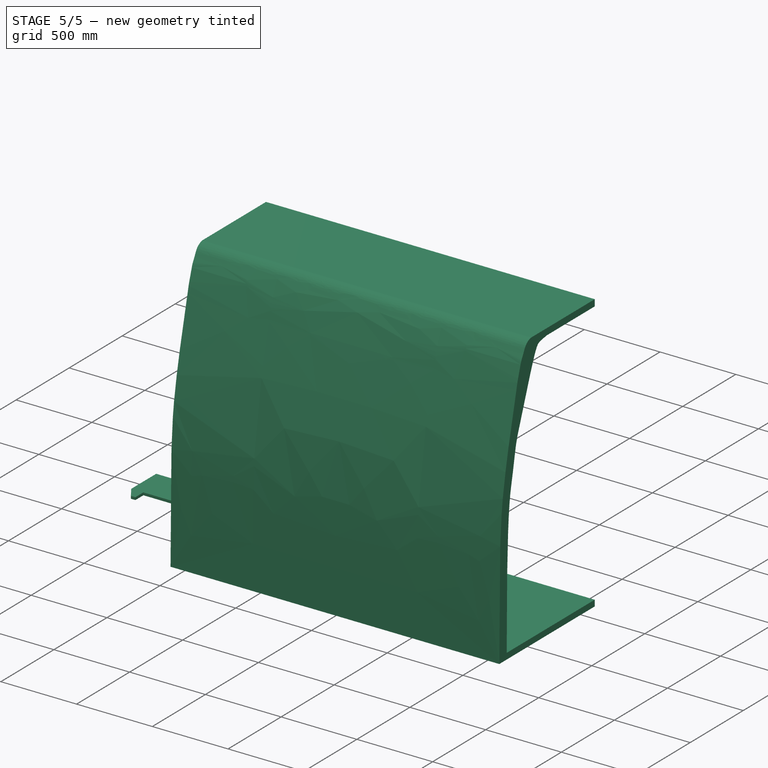
[diagram: stage 5 of 5 — iso view after this stage's code; geometry added in this stage tinted green]
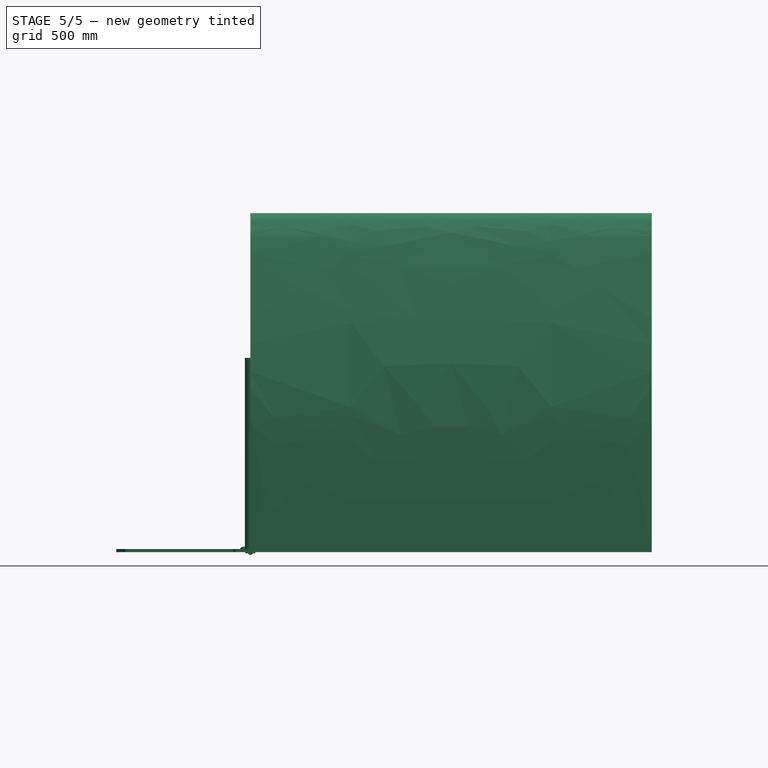
[diagram: stage 5 of 5 — front view after this stage's code; geometry added in this stage tinted green]
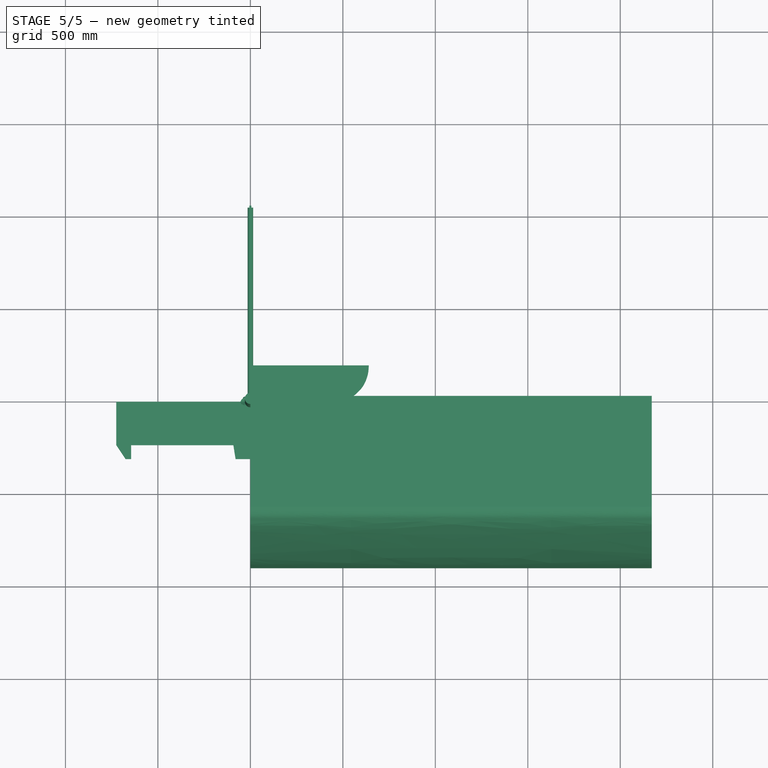
[diagram: stage 5 of 5 — top view after this stage's code; geometry added in this stage tinted green]
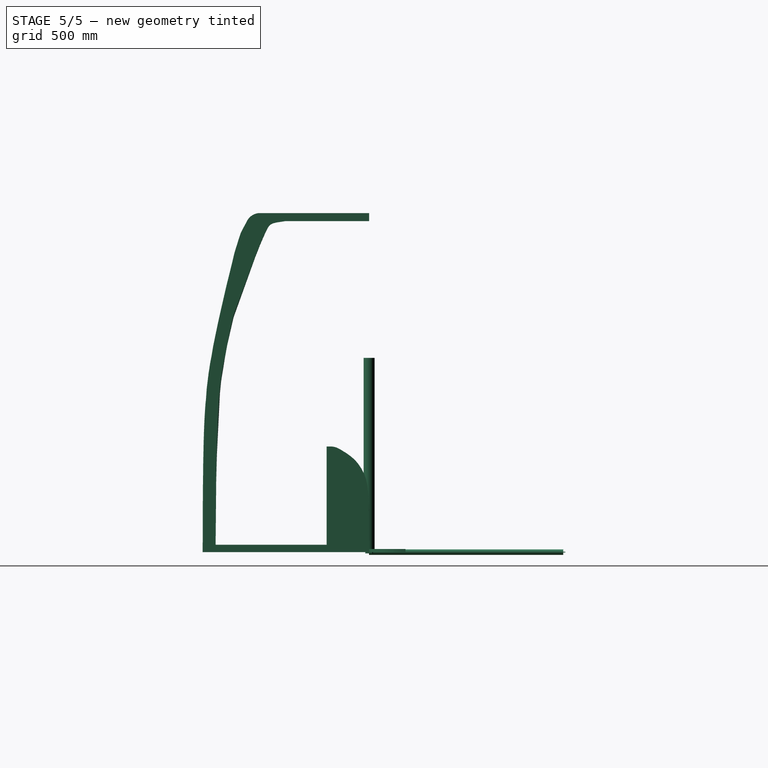
[diagram: stage 5 of 5 — right view after this stage's code; geometry added in this stage tinted green]
FEATURE [Sketcher::SketchObject] Sketch  label="Outter_region"
  MapMode = 5
  Support = -> [XY_Plane001]
  sketch-geometry (10):
    g0: GeomPoint X=0 Y=28 Z=0
    g1: GeomPoint X=0 Y=-28.07 Z=0
    g2: ArcOfCircle CenterX=-29 CenterY=-15.2502 CenterZ=0 NormalX=0 NormalY=0 NormalZ=1 AngleXU=0 Radius=12.7856 StartAngle=3.22125 EndAngle=4.63751
    g3: ArcOfCircle CenterX=-29 CenterY=15.2527 CenterZ=0 NormalX=0 NormalY=0 NormalZ=1 AngleXU=0 Radius=12.7856 StartAngle=1.64822 EndAngle=3.22125
    g4: LineSegment StartX=-41.7451 StartY=14.2352 StartZ=0 EndX=-41.7451 EndY=-16.2676 EndZ=0
    g5: ArcOfCircle CenterX=29 CenterY=15.2555 CenterZ=0 NormalX=0 NormalY=0 NormalZ=1 AngleXU=0 Radius=12.7856 StartAngle=0.0208341 EndAngle=1.49051
    g6: ArcOfCircle CenterX=29 CenterY=-15.2544 CenterZ=0 NormalX=0 NormalY=0 NormalZ=1 AngleXU=0 Radius=12.7856 StartAngle=4.79159 EndAngle=6.26235
    g7: LineSegment StartX=41.7829 StartY=-15.5208 StartZ=0 EndX=41.7829 EndY=15.5219 EndZ=0
    g8: LineSegment StartX=-29.9889 StartY=28 StartZ=0 EndX=30.0254 EndY=28 EndZ=0
    g9: LineSegment StartX=30.0115 StartY=-28 StartZ=0 EndX=-29.9565 EndY=-28 EndZ=0
  constraints (27):
    c: PointOnObject(g0,g-2)
    c: PointOnObject(g1,g-2)
    c: Coincident(g4,g3)
    c: Coincident(g4,g2)
    c: Vertical(g4)
    c: Coincident(g7,g6)
    c: Coincident(g7,g5)
    c: Vertical(g7)
    c: Coincident(g8,g3)
    c: Coincident(g8,g5)
    c: Horizontal(g8)
    c: Coincident(g9,g6)
    c: Coincident(g9,g2)
    c: Horizontal(g9)
    c: DistanceX(g2,g-1) = 29
    c: DistanceX(g3,g-1) = 29
    c: DistanceX(g-1,g5) = 29
    c: DistanceX(g-1,g6) = 29
    c: Equal(g5,g3)
    c: Equal(g3,g2)
    c: Equal(g2,g6)
    c: DistanceY(g-1,g3) = 28
    c: DistanceX(g3,g-1) = 41.7451
    c: DistanceX(g-1,g5) = 41.7829
    c: DistanceY(g6,g5) = 56
    c: DistanceY(g2,g-1) = 28
    c: DistanceX(g2,g6) = 83.5279
FEATURE [Sketcher::SketchObject] Sketch001  label="Car_socket"
  AttachmentOffset = pos=(0,0,-7) rot=(0,0,1;0rad)
  MapMode = 5
  Placement = pos=(0,0,-7) rot=(0,0,1;0rad)
  Support = -> [XY_Plane001]
  sketch-geometry (16):
    g0: GeomPoint X=-27 Y=0 Z=0
    g1: GeomPoint X=27 Y=0 Z=0
    g2: GeomPoint X=0 Y=21 Z=0
    g3: GeomPoint X=0 Y=-21 Z=0
    g4: LineSegment StartX=0 StartY=-21 StartZ=0 EndX=-20.1229 EndY=-21 EndZ=0
    g5: LineSegment StartX=0 StartY=-21 StartZ=0 EndX=20.1229 EndY=-21 EndZ=0
    g6: LineSegment StartX=0 StartY=21 StartZ=0 EndX=-20.1229 EndY=21 EndZ=0
    g7: LineSegment StartX=0 StartY=21 StartZ=0 EndX=20.1229 EndY=21 EndZ=0
    g8: LineSegment StartX=-27 StartY=0 StartZ=0 EndX=-27 EndY=14.1229 EndZ=0
    g9: LineSegment StartX=-27 StartY=0 StartZ=0 EndX=-27 EndY=-14.1229 EndZ=0
    g10: LineSegment StartX=27 StartY=0 StartZ=0 EndX=27 EndY=-14.1229 EndZ=0
    g11: LineSegment StartX=27 StartY=0 StartZ=0 EndX=27 EndY=14.1229 EndZ=0
    g12: ArcOfCircle CenterX=20.1229 CenterY=14.1229 CenterZ=0 NormalX=0 NormalY=0 NormalZ=1 AngleXU=0 Radius=6.87711 StartAngle=0 EndAngle=1.5708
    g13: ArcOfCircle CenterX=-20.1229 CenterY=14.1229 CenterZ=0 NormalX=0 NormalY=0 NormalZ=1 AngleXU=0 Radius=6.87711 StartAngle=1.5708 EndAngle=3.14159
    g14: ArcOfCircle CenterX=-20.1229 CenterY=-14.1229 CenterZ=0 NormalX=0 NormalY=0 NormalZ=1 AngleXU=0 Radius=6.87711 StartAngle=3.14159 EndAngle=4.71239
    g15: ArcOfCircle CenterX=20.1229 CenterY=-14.1229 CenterZ=0 NormalX=0 NormalY=0 NormalZ=1 AngleXU=0 Radius=6.87711 StartAngle=4.71239 EndAngle=6.28319
  constraints (36):
    c: PointOnObject(g0,g-1)
    c: PointOnObject(g1,g-1)
    c: PointOnObject(g2,g-2)
    c: PointOnObject(g3,g-2)
    c: DistanceX(g0,g-1) = 27
    c: DistanceY(g-1,g2) = 21
    c: Coincident(g4,g3)
    c: Horizontal(g4)
    c: Coincident(g5,g3)
    c: Horizontal(g5)
    c: Coincident(g6,g2)
    c: Horizontal(g6)
    c: Coincident(g7,g2)
    c: Horizontal(g7)
    c: Coincident(g8,g0)
    c: Vertical(g8)
    c: Coincident(g9,g0)
    c: Vertical(g9)
    c: Coincident(g10,g1)
    c: Vertical(g10)
    c: Coincident(g11,g1)
    c: Vertical(g11)
    c: Tangent(g7,g12) = 1.5708
    c: Tangent(g11,g12) = -1.5708
    c: Tangent(g8,g13) = 1.5708
    c: Tangent(g6,g13) = -1.5708
    c: Tangent(g9,g14) = -1.5708
    c: Tangent(g4,g14) = 1.5708
    c: Tangent(g5,g15) = -1.5708
    c: Tangent(g10,g15) = 1.5708
    c: Equal(g9,g10)
    c: Equal(g10,g11)
    c: Equal(g11,g8)
    c: Equal(g6,g7)
    c: Equal(g7,g5)
    c: Equal(g5,g4)
FEATURE [PartDesign::Pad] Pad  label="Solid_outter_part"
  Length = 6
  Length2 = 100
  Profile = -> Sketch
  Type = 0
FEATURE [PartDesign::Pad] Pad001  label="Solid_socket"
  BaseFeature = -> Pad
  Length = 8
  Length2 = 100
  Profile = -> Sketch001
  Type = 0
FEATURE [PartDesign::Fillet] Fillet
  Base = -> Pad001 [Edge29,Edge28,Edge4,Edge10,Edge7,Edge32,Edge31,Edge30]
  BaseFeature = -> Pad001
  Radius = 4
FEATURE [Sketcher::SketchObject] Sketch002  label="screw_head_socket"
  AttachmentOffset = pos=(-6,-4,12) rot=(1,0,0;0.261799rad)
  MapMode = 5
  Placement = pos=(-6,-4,12) rot=(1,0,0;0.261799rad)
  Support = -> [XY_Plane001]
  sketch-geometry (1):
    g0: Circle CenterX=0 CenterY=0 CenterZ=0 NormalX=0 NormalY=0 NormalZ=1 AngleXU=0 Radius=10
  constraints (2):
    c: Coincident(g0,g-1)
    c: Radius(g0) = 10
FEATURE [Sketcher::SketchObject] Sketch003  label="screw_trough_hole"
  AttachmentOffset = pos=(-6,-4,12) rot=(1,0,0;0.261799rad)
  MapMode = 5
  Placement = pos=(-6,-4,12) rot=(1,0,0;0.261799rad)
  Support = -> [XY_Plane001]
  sketch-geometry (1):
    g0: Circle CenterX=0 CenterY=0 CenterZ=0 NormalX=0 NormalY=0 NormalZ=1 AngleXU=0 Radius=5
  constraints (2):
    c: Coincident(g0,g-1)
    c: Radius(g0) = 5
FEATURE [PartDesign::Pocket] Pocket
  BaseFeature = -> Fillet
  Length = 13
  Length2 = 100
  Profile = -> Sketch002
  Type = 0
FEATURE [PartDesign::Pocket] Pocket001  label="Solid_screw_trough_hole"
  BaseFeature = -> Pocket
  Length = 28
  Length2 = 100
  Profile = -> Sketch003
  Type = 0
FEATURE [PartDesign::Body] Body  label="Body - Left"
  Group = -> [Sketch,Sketch001,Pad,Pad001,Fillet,Sketch002,Sketch003,Pocket,Pocket001]
  Origin = -> Origin001
  Tip = -> Pocket001
FEATURE [Sketcher::SketchObject] Sketch004
  MapMode = 5
  Support = -> [XY_Plane002]
  sketch-geometry (29):
    g0: LineSegment StartX=-9.58978 StartY=13.5 StartZ=0 EndX=16.3044 EndY=13.5 EndZ=0
    g1-g5: Circle [constr] x5 (B-spline internal-alignment scaffolding for g6; pole/knot coordinates omitted)
    g6: BSplineCurve PolesCount=5 KnotsCount=3 Degree=3 IsPeriodic=0
    g7: GeomPoint [constr] X=16.3044 Y=13.5 Z=0
    g8: GeomPoint [constr] X=27.9019 Y=10.9729 Z=0
    g9: GeomPoint [constr] X=36.883 Y=3.99632 Z=0
    g10: LineSegment StartX=-9.47542 StartY=18.5 StartZ=0 EndX=16.4188 EndY=18.5 EndZ=0
    g11-g14: Circle [constr] x4 (B-spline internal-alignment scaffolding for g15; pole/knot coordinates omitted)
    g15: BSplineCurve PolesCount=4 KnotsCount=2 Degree=3 IsPeriodic=0
    g16: GeomPoint [constr] X=16.4188 Y=18.5 Z=0
    g17: GeomPoint [constr] X=36.883 Y=3.99632 Z=0
    g18: Circle [constr] CenterX=-9.47542 CenterY=18.5 CenterZ=0 NormalX=0 NormalY=0 NormalZ=1 AngleXU=0 Radius=5
    g19: Circle [constr] CenterX=-37.3482 CenterY=18.4799 CenterZ=0 NormalX=0 NormalY=0 NormalZ=1 AngleXU=0 Radius=5
    g20: Circle [constr] CenterX=-45.9357 CenterY=14.9697 CenterZ=0 NormalX=0 NormalY=0 NormalZ=1 AngleXU=0 Radius=5
    g21: Circle [constr] CenterX=-52.392 CenterY=5.81805 CenterZ=0 NormalX=0 NormalY=0 NormalZ=1 AngleXU=0 Radius=5
    g22: Circle [constr] CenterX=-53.9591 CenterY=0 CenterZ=0 NormalX=0 NormalY=0 NormalZ=1 AngleXU=0 Radius=5
    g23: BSplineCurve PolesCount=5 KnotsCount=3 Degree=3 IsPeriodic=0
    g24: GeomPoint [constr] X=-9.47542 Y=18.5 Z=0
    g25: GeomPoint [constr] X=-45.4029 Y=13.5593 Z=0
    g26: GeomPoint [constr] X=-53.9591 Y=0 Z=0
    g27: ArcOfCircle CenterX=-9.0071 CenterY=2.11284e-05 CenterZ=0 NormalX=0 NormalY=0 NormalZ=1 AngleXU=0 Radius=13.5125 StartAngle=1.61393 EndAngle=3.14159
    g28: LineSegment StartX=-22.5197 StartY=0 StartZ=0 EndX=-53.9591 EndY=0 EndZ=0
  constraints (33):
    c: Horizontal(g0)
    c: DistanceY(g-1,g0) = 13.5
    c: Coincident(g1,g0)
    c: Radius(g1) = 2
    c: Equal(g1,g2)
    c: PointOnObject(g2,g1)
    c: Equal(g1,g3)
    c: Equal(g1,g4)
    c: Equal(g1,g5)
    c: InternalAlignment(g1-g5 -> g6) x5
    c: InternalAlignment(g7,g6)
    c: InternalAlignment(g8,g6)
    c: InternalAlignment(g9,g6)
    c: Horizontal(g10)
    c: DistanceY(g0,g10) = 5
    c: Equal(g10,g0)
    c: Coincident(g11,g10)
    c: Radius(g11) = 2
    c: Equal(g11,g12)
    c: Equal(g11,g13)
    c: Equal(g11,g14)
    c: Coincident(g14,g5)
    c: InternalAlignment(g11-g14 -> g15) x4
    c: InternalAlignment(g16,g15)
    c: InternalAlignment(g17,g15)
    c: Coincident(g18,g10)
    c: Radius(g18) = 5
    c: Equal(g18, g19-g22) x4
    c: Coincident(g27,g0)
    c: PointOnObject(g27,g-1)
    c: Coincident(g28,g27)
    c: Coincident(g28,g22)
    c: Horizontal(g28)
FEATURE [Sketcher::SketchObject] MirroredSketch
  sketch-geometry (29):
    g0: LineSegment StartX=-9.27509 StartY=-13.5 StartZ=0 EndX=16.7793 EndY=-13.5 EndZ=0
    g1: Circle [constr] CenterX=16.7793 CenterY=-13.5 CenterZ=0 NormalX=0 NormalY=0 NormalZ=1 AngleXU=0 Radius=2
    g2: Circle [constr] CenterX=18.7793 CenterY=-13.5016 CenterZ=0 NormalX=0 NormalY=0 NormalZ=1 AngleXU=0 Radius=2
    g3: Circle [constr] CenterX=30.2613 CenterY=-12.3004 CenterZ=0 NormalX=0 NormalY=0 NormalZ=1 AngleXU=0 Radius=2
    g4: Circle [constr] CenterX=32.7805 CenterY=-5.78943 CenterZ=0 NormalX=0 NormalY=0 NormalZ=1 AngleXU=0 Radius=2
    g5: Circle [constr] CenterX=36.883 CenterY=-3.99632 CenterZ=0 NormalX=0 NormalY=0 NormalZ=1 AngleXU=0 Radius=2
    g6: BSplineCurve PolesCount=5 KnotsCount=3 Degree=3 IsPeriodic=0
    g7: GeomPoint [constr] X=16.7793 Y=-13.5 Z=0
    g8: GeomPoint [constr] X=28.0206 Y=-10.973 Z=0
    g9: GeomPoint [constr] X=36.883 Y=-3.99632 Z=0
    g10: LineSegment StartX=-9.47542 StartY=-18.5 StartZ=0 EndX=16.579 EndY=-18.5 EndZ=0
    g11: Circle [constr] CenterX=16.579 CenterY=-18.5 CenterZ=0 NormalX=0 NormalY=0 NormalZ=1 AngleXU=0 Radius=2
    g12: Circle [constr] CenterX=30.0728 CenterY=-14.9629 CenterZ=0 NormalX=0 NormalY=0 NormalZ=1 AngleXU=0 Radius=2
    g13: Circle [constr] CenterX=31.6104 CenterY=-10.0592 CenterZ=0 NormalX=0 NormalY=0 NormalZ=1 AngleXU=0 Radius=2
    g14: Circle [constr] CenterX=36.883 CenterY=-3.99632 CenterZ=0 NormalX=0 NormalY=0 NormalZ=1 AngleXU=0 Radius=2
    g15: BSplineCurve PolesCount=4 KnotsCount=2 Degree=3 IsPeriodic=0
    g16: GeomPoint [constr] X=16.579 Y=-18.5 Z=0
    g17: GeomPoint [constr] X=36.883 Y=-3.99632 Z=0
    g18: Circle [constr] CenterX=-9.47542 CenterY=-18.5 CenterZ=0 NormalX=0 NormalY=0 NormalZ=1 AngleXU=0 Radius=5
    g19: Circle [constr] CenterX=-37.3482 CenterY=-18.4799 CenterZ=0 NormalX=0 NormalY=0 NormalZ=1 AngleXU=0 Radius=5
    g20: Circle [constr] CenterX=-45.9357 CenterY=-14.9697 CenterZ=0 NormalX=0 NormalY=0 NormalZ=1 AngleXU=0 Radius=5
    g21: Circle [constr] CenterX=-52.392 CenterY=-5.81805 CenterZ=0 NormalX=0 NormalY=0 NormalZ=1 AngleXU=0 Radius=5
    g22: Circle [constr] CenterX=-53.9591 CenterY=5e-12 CenterZ=0 NormalX=0 NormalY=0 NormalZ=1 AngleXU=0 Radius=5
    g23: BSplineCurve PolesCount=5 KnotsCount=3 Degree=3 IsPeriodic=0
    g24: GeomPoint [constr] X=-9.47542 Y=-18.5 Z=0
    g25: GeomPoint [constr] X=-45.4029 Y=-13.5593 Z=0
    g26: GeomPoint [constr] X=-53.9591 Y=0 Z=0
    g27: ArcOfCircle CenterX=-9.0071 CenterY=-4.95926e-06 CenterZ=0 NormalX=0 NormalY=0 NormalZ=1 AngleXU=0 Radius=13.5027 StartAngle=3.14159 EndAngle=4.69254
    g28: LineSegment StartX=-22.5098 StartY=5e-12 StartZ=0 EndX=-53.9591 EndY=5e-12 EndZ=0
  constraints (23):
    c: Horizontal(g0)
    c: Coincident(g1,g0)
    c: Radius(g1) = 2
    c: Equal(g1,g2)
    c: PointOnObject(g2,g1)
    c: Equal(g1,g3)
    c: Equal(g1,g4)
    c: Equal(g1,g5)
    c: Horizontal(g10)
    c: Equal(g10,g0)
    c: Coincident(g11,g10)
    c: Radius(g11) = 2
    c: Equal(g11,g12)
    c: Equal(g11,g13)
    c: Equal(g11,g14)
    c: Coincident(g14,g5)
    c: Coincident(g18,g10)
    c: Radius(g18) = 5
    c: Equal(g18, g19-g22) x4
    c: Coincident(g27,g0)
    c: Coincident(g28,g27)
    c: Coincident(g28,g22)
    c: Horizontal(g28)
FEATURE [PartDesign::Pad] Pad002
  Length = 30
  Length2 = 100
  Profile = -> Sketch004
  Type = 0
FEATURE [PartDesign::Pad] Pad003
  BaseFeature = -> Pad002
  Length = 30
  Length2 = 100
  Profile = -> MirroredSketch
  Type = 0
FEATURE [Sketcher::SketchObject] Sketch005
  MapMode = 5
  Placement = pos=(0,0,0) rot=(1,0,0;1.5708rad)
  Support = -> [XZ_Plane002]
  sketch-geometry (31):
    g0-g13: Circle [constr] x14 (B-spline internal-alignment scaffolding for g14; pole/knot coordinates omitted)
    g14: BSplineCurve PolesCount=14 KnotsCount=12 Degree=3 IsPeriodic=0
    g15-g26: GeomPoint [constr] x12 (B-spline internal-alignment scaffolding for g14; pole/knot coordinates omitted)
    g27: LineSegment StartX=-54.0267 StartY=16.4728 StartZ=0 EndX=-67.1158 EndY=16.5807 EndZ=0
    g28: LineSegment StartX=-67.1158 StartY=16.5807 StartZ=0 EndX=-67.1158 EndY=-12.0404 EndZ=0
    g29: LineSegment StartX=-67.1158 StartY=-12.0404 StartZ=0 EndX=-30.5191 EndY=-12.0404 EndZ=0
    g30: LineSegment StartX=-30.5191 StartY=-12.0404 StartZ=0 EndX=-24.537 EndY=-5.96273 EndZ=0
  constraints (10):
    c: Equal(g0, g1-g13) x13
    c: InternalAlignment(g0-g13 -> g14) x14
    c: InternalAlignment(g15-g26 -> g14) x12
    c: Coincident(g27,g13)
    c: Coincident(g28,g27)
    c: Vertical(g28)
    c: Coincident(g29,g28)
    c: Horizontal(g29)
    c: Coincident(g30,g29)
    c: Coincident(g30,g0)
FEATURE [PartDesign::Pocket] Pocket002
  BaseFeature = -> Pad003
  Length = 40
  Length2 = 100
  Midplane = true
  Profile = -> Sketch005
  Type = 0
FEATURE [Sketcher::SketchObject] Sketch006
  MapMode = 5
  Placement = pos=(0,0,0) rot=(1,0,0;1.5708rad)
  Support = -> [XZ_Plane002]
  sketch-geometry (34):
    g0-g14: Circle [constr] x15 (B-spline internal-alignment scaffolding for g15; pole/knot coordinates omitted)
    g15: BSplineCurve PolesCount=15 KnotsCount=13 Degree=3 IsPeriodic=0
    g16: GeomPoint [constr] X=37.0012 Y=0 Z=0
    g17: GeomPoint [constr] X=34.2626 Y=1.51967 Z=0
    g18: GeomPoint [constr] X=31.196 Y=2.3893 Z=0
    g19: GeomPoint [constr] X=27.6107 Y=3.2818 Z=0
    g20: GeomPoint [constr] X=22.1336 Y=4.44893 Z=0
    g21: GeomPoint [constr] X=12.7546 Y=6.13478 Z=0
    g22: GeomPoint [constr] X=-1.22035 Y=8.3012 Z=0
    g23: GeomPoint [constr] X=-17.4348 Y=11.6069 Z=0
    g24: GeomPoint [constr] X=-24.3733 Y=16.7582 Z=0
    g25: GeomPoint [constr] X=-26.6354 Y=22.1109 Z=0
    g26: GeomPoint [constr] X=-27.9265 Y=27.1917 Z=0
    g27: GeomPoint [constr] X=-29.3353 Y=29.3697 Z=0
    g28: GeomPoint [constr] X=-30.6853 Y=30.3483 Z=0
    g29: LineSegment StartX=49.5259 StartY=7.28546 StartZ=0 EndX=37.4444 EndY=0 EndZ=0
    g30: LineSegment StartX=49.5259 StartY=7.28546 StartZ=0 EndX=49.5259 EndY=21.3368 EndZ=0
    g31: LineSegment StartX=-30.572 StartY=21.2812 StartZ=0 EndX=-30.572 EndY=45.33 EndZ=0
    g32: LineSegment StartX=-30.572 StartY=45.33 StartZ=0 EndX=49.5259 EndY=45.33 EndZ=0
    g33: LineSegment StartX=49.5259 StartY=21.3368 StartZ=0 EndX=49.5259 EndY=45.33 EndZ=0
  constraints (14):
    c: PointOnObject(g0,g-1)
    c: Radius(g0) = 0.2
    c: Equal(g0, g1-g14) x14
    c: InternalAlignment(g0-g14 -> g15) x15
    c: Coincident(g29,g0)
    c: Coincident(g30,g29)
    c: Vertical(g30)
    c: Coincident(g31,g14)
    c: Vertical(g31)
    c: Coincident(g32,g31)
    c: Horizontal(g32)
    c: Coincident(g33,g30)
    c: Coincident(g33,g32)
    c: Vertical(g33)
FEATURE [PartDesign::Pocket] Pocket003
  BaseFeature = -> Pocket002
  Length = 43
  Length2 = 100
  Midplane = true
  Profile = -> Sketch006
  Type = 0
FEATURE [Sketcher::SketchObject] Sketch007
  AttachmentOffset = pos=(-41,0,20) rot=(1,0,0;-0.523599rad)
  MapMode = 5
  Placement = pos=(-41,0,20) rot=(1,0,0;5.75959rad)
  Support = -> [XY_Plane002]
  sketch-geometry (4):
    g0: LineSegment StartX=-6 StartY=-2.5 StartZ=0 EndX=6 EndY=-2.5 EndZ=0
    g1: LineSegment StartX=6 StartY=-2.5 StartZ=0 EndX=6 EndY=2.5 EndZ=0
    g2: LineSegment StartX=6 StartY=2.5 StartZ=0 EndX=-6 EndY=2.5 EndZ=0
    g3: LineSegment StartX=-6 StartY=2.5 StartZ=0 EndX=-6 EndY=-2.5 EndZ=0
  constraints (12):
    c: Coincident(g0,g1)
    c: Coincident(g1,g2)
    c: Coincident(g2,g3)
    c: Coincident(g3,g0)
    c: Horizontal(g0)
    c: Horizontal(g2)
    c: Vertical(g1)
    c: Vertical(g3)
    c: DistanceX(g0,g-1) = 6
    c: DistanceY(g0,g-1) = 2.5
    c: DistanceY(g0,g2) = 5
    c: DistanceX(g-1,g1) = 6
FEATURE [PartDesign::Pocket] Pocket004
  BaseFeature = -> Pocket003
  Length = 12
  Length2 = 100
  Profile = -> Sketch007
  Type = 0
FEATURE [Sketcher::SketchObject] Sketch016
  AttachmentOffset = pos=(0,-8,-9) rot=(0,0,1;0rad)
  MapMode = 5
  Placement = pos=(-9,0,-8) rot=(0.57735,0.57735,0.57735;2.0944rad)
  Support = -> [YZ_Plane002]
  sketch-geometry (4):
    g0: LineSegment StartX=19.0581 StartY=16.7202 StartZ=0 EndX=-18.576 EndY=38.4482 EndZ=0
    g1: LineSegment StartX=-18.576 StartY=38.4482 StartZ=0 EndX=-18.576 EndY=49.4342 EndZ=0
    g2: LineSegment StartX=19.0581 StartY=49.4342 StartZ=0 EndX=-18.576 EndY=49.4342 EndZ=0
    g3: LineSegment StartX=19.0581 StartY=49.4342 StartZ=0 EndX=19.0581 EndY=16.7202 EndZ=0
  constraints (8):
    c: Coincident(g1,g0)
    c: Vertical(g1)
    c: Coincident(g2,g1)
    c: Horizontal(g2)
    c: Coincident(g3,g2)
    c: Coincident(g3,g0)
    c: Vertical(g3)
    c: Angle(g3,g0) = 1.0472
FEATURE [PartDesign::Pocket] Pocket010
  BaseFeature = -> Pocket004
  Length = 56
  Length2 = 100
  Profile = -> Sketch016
  Type = 0
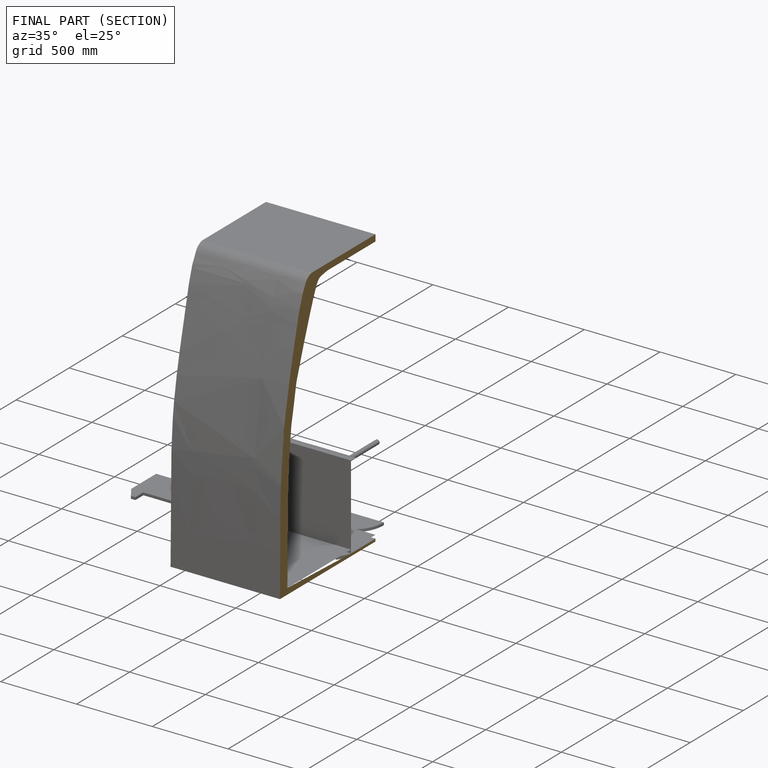
[diagram: finished part — half-section view (interior)]
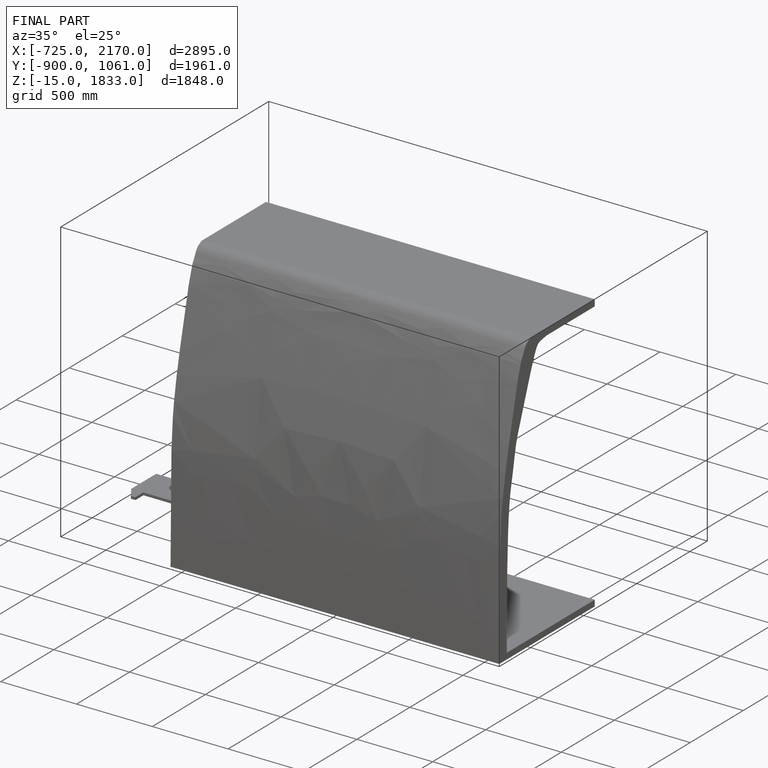
[diagram: finished part — iso view with bounding-box wireframe]
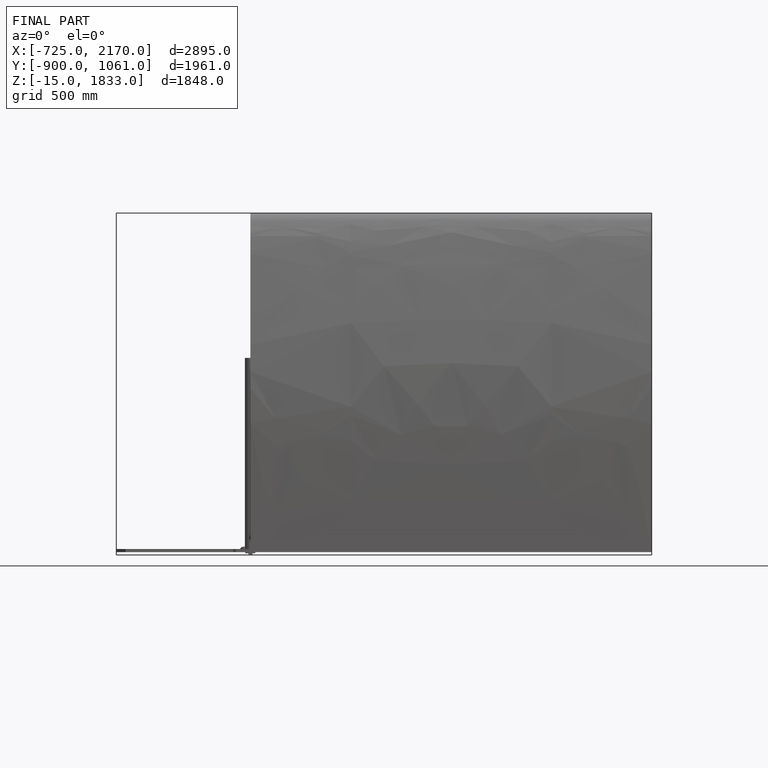
[diagram: finished part — front view with bounding-box wireframe]
